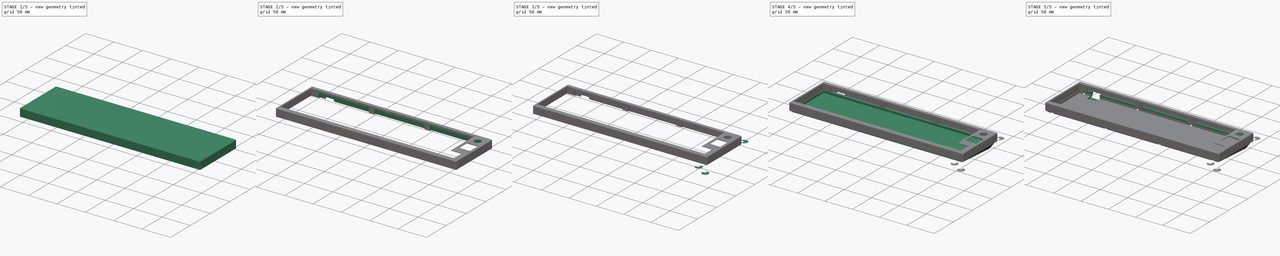
[diagram: build sequence overview — one tinted view per stage of 5, left to right]
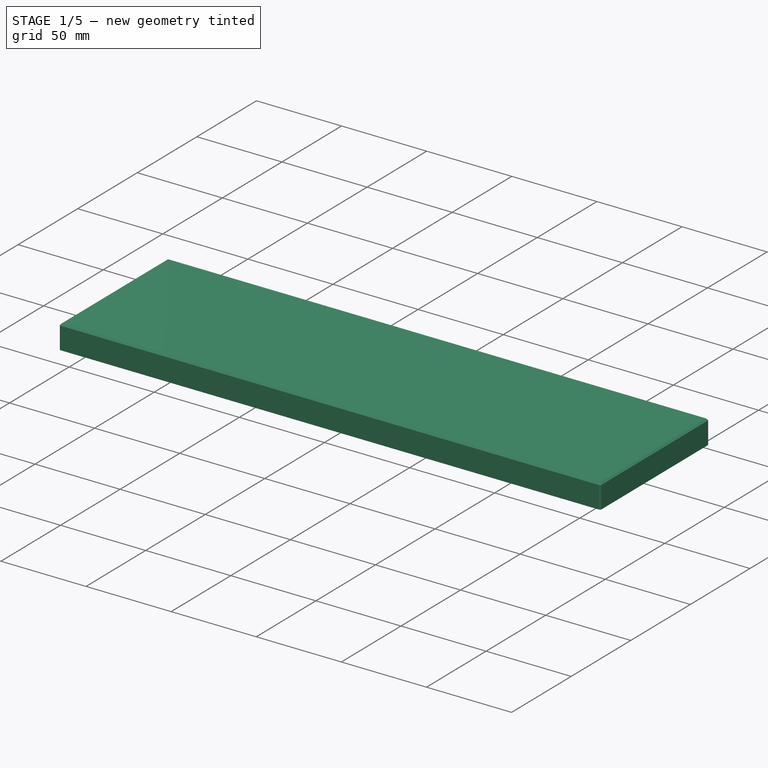
[diagram: stage 1 of 5 — iso view after this stage's code; geometry added in this stage tinted green]
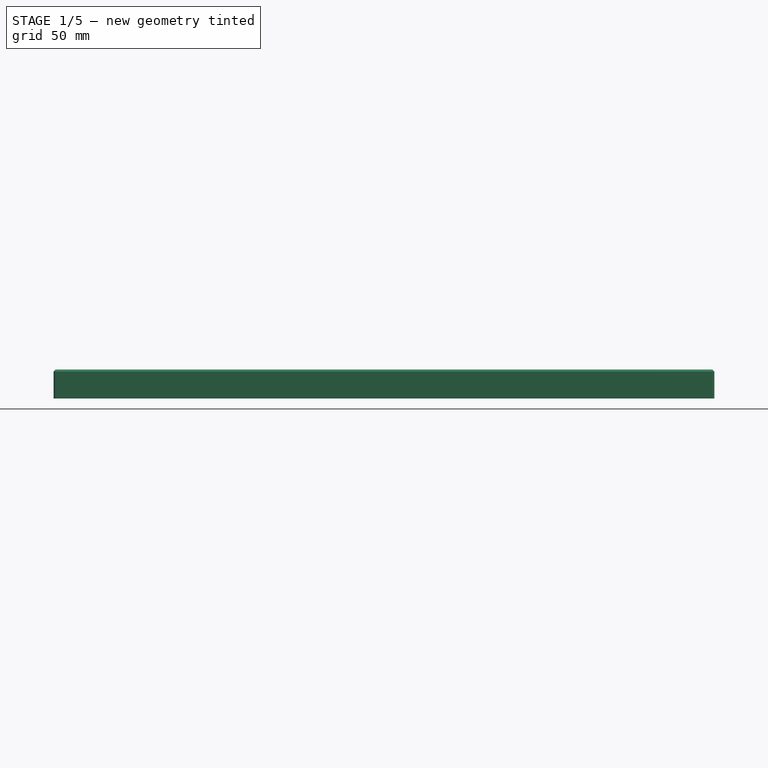
[diagram: stage 1 of 5 — front view after this stage's code; geometry added in this stage tinted green]
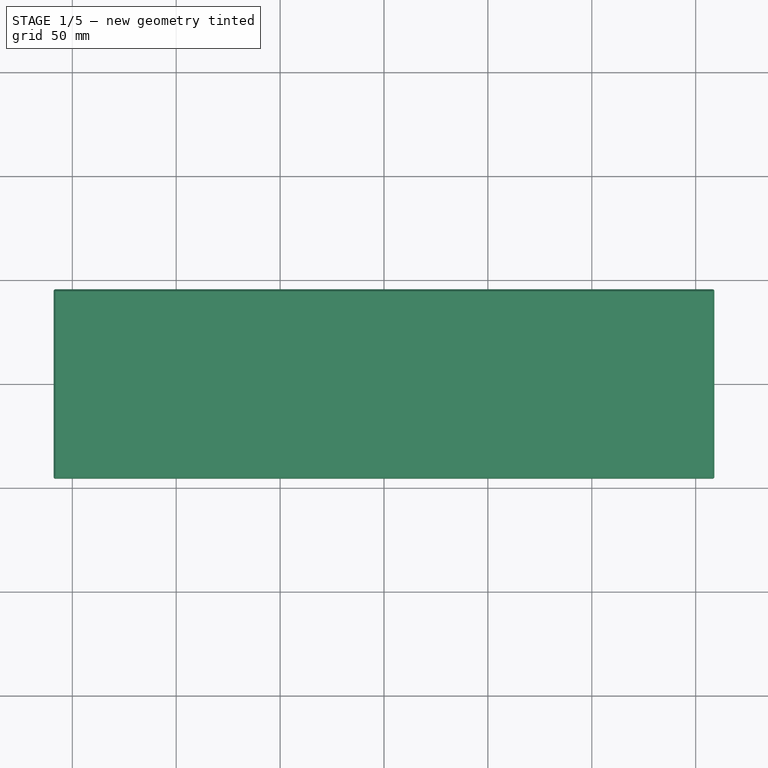
[diagram: stage 1 of 5 — top view after this stage's code; geometry added in this stage tinted green]
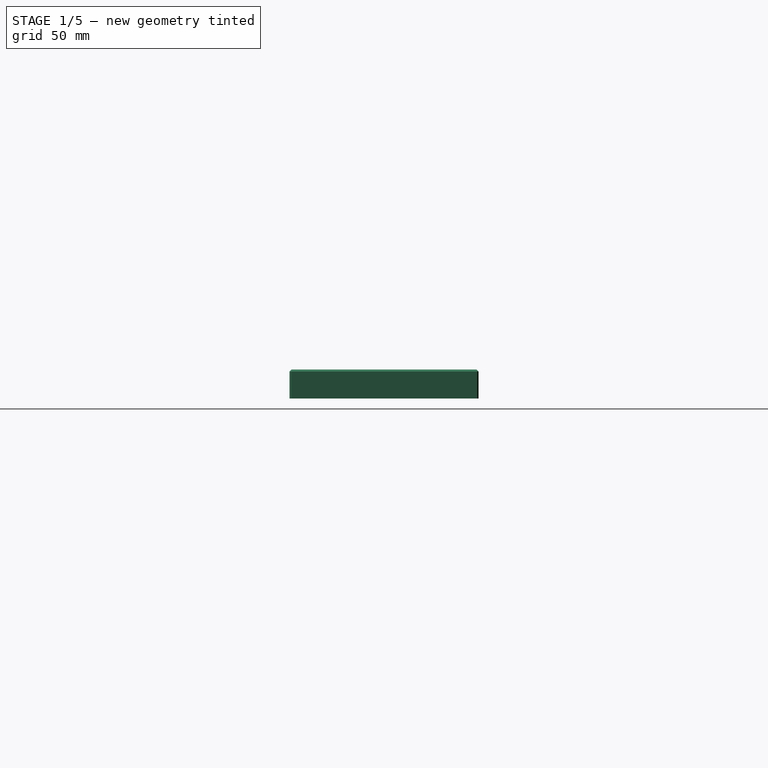
[diagram: stage 1 of 5 — right view after this stage's code; geometry added in this stage tinted green]
FCSTD DOCUMENT  (FreeCAD 1.0R39285 (Git))
Label: ts52k-case
License: All rights reserved
LicenseURL: http://en.wikipedia.org/wiki/All_rights_reserved
objects: Sketcher::SketchObject×19, PartDesign::Pocket×10, PartDesign::Pad×6, PartDesign::Body×5, PartDesign::Fillet×2, Spreadsheet::Sheet×1, PartDesign::AdditiveLoft×1, PartDesign::Chamfer×1
note: 103 computed .brp shape members not serialized (recipe doc carries the construction recipe); baked Part::Feature solids carry a one-line shape summary decoded from their .brp

FEATURE [Sketcher::SketchObject] Sketch011
  ArcFitTolerance = 0
  AttachmentSupport = -> [XY_Plane001]
  FullyConstrained = true
  MakeInternals = false
  MapMode = 5
  sketch-geometry (12):
    g0: LineSegment StartX=-158 StartY=45.5 StartZ=0 EndX=158 EndY=45.5 EndZ=0
    g1: LineSegment StartX=159 StartY=44.5 StartZ=0 EndX=159 EndY=-44.5 EndZ=0
    g2: LineSegment StartX=158 StartY=-45.5 StartZ=0 EndX=-158 EndY=-45.5 EndZ=0
    g3: LineSegment StartX=-159 StartY=-44.5 StartZ=0 EndX=-159 EndY=44.5 EndZ=0
    g4: ArcOfCircle CenterX=-158 CenterY=44.5 CenterZ=0 NormalX=0 NormalY=0 NormalZ=1 AngleXU=0 Radius=1 StartAngle=1.5708 EndAngle=3.14159
    g5: GeomPoint [constr] X=-159 Y=45.5 Z=0
    g6: ArcOfCircle CenterX=158 CenterY=44.5 CenterZ=0 NormalX=0 NormalY=0 NormalZ=1 AngleXU=0 Radius=1 StartAngle=1.1e-15 EndAngle=1.5708
    g7: GeomPoint [constr] X=159 Y=45.5 Z=0
    g8: ArcOfCircle CenterX=158 CenterY=-44.5 CenterZ=0 NormalX=0 NormalY=0 NormalZ=1 AngleXU=0 Radius=1 StartAngle=4.71239 EndAngle=6.28319
    g9: GeomPoint [constr] X=159 Y=-45.5 Z=0
    g10: ArcOfCircle CenterX=-158 CenterY=-44.5 CenterZ=0 NormalX=0 NormalY=0 NormalZ=1 AngleXU=0 Radius=1 StartAngle=3.14159 EndAngle=4.71239
    g11: GeomPoint [constr] X=-159 Y=-45.5 Z=0
  constraints (26):
    c: Horizontal(g2)
    c: Vertical(g1)
    c: DistanceX(g5,g7) = 318
    c: DistanceY(g11,g5) = 91
    c: PointOnObject(g5,g3)
    c: PointOnObject(g5,g0)
    c: Tangent(g3,g4) = 1.5708
    c: Tangent(g0,g4) = 1.5708
    c: PointOnObject(g7,g0)
    c: PointOnObject(g7,g1)
    c: Tangent(g0,g6) = 1.5708
    c: Tangent(g1,g6) = 1.5708
    c: PointOnObject(g9,g1)
    c: PointOnObject(g9,g2)
    c: Tangent(g1,g8) = 1.5708
    c: Tangent(g2,g8) = 1.5708
    c: PointOnObject(g11,g2)
    c: PointOnObject(g11,g3)
    c: Tangent(g2,g10) = 1.5708
    c: Tangent(g3,g10) = 1.5708
    c: Radius(g4) = 1
    c: Radius(g10) = 1
    c: Radius(g8) = 1
    c: Radius(g6) = 1
    c: Symmetric(g0,g2,g-1)
    c: Symmetric(g0,g0,g-2)
FEATURE [PartDesign::Pad] Pad001  label="upper-body001"
  Direction = (0,0,1)
  Length = 14
  Length2 = 10
  Profile = -> Sketch011
  ReferenceAxis = -> Sketch011 [N_Axis]
  Suppressed = false
  Type = 0
FEATURE [PartDesign::Body] Body008  label="Brim-Base2"
  AllowCompound = false
  Group = -> [Sketch075,Pad014]
  Origin = -> Origin008
  Tip = -> Pad014
FEATURE [PartDesign::Chamfer] Chamfer
  Angle = 45
  Base = -> Pad001 [Face10]
  BaseFeature = -> Pad001
  ChamferType = 0
  FlipDirection = false
  Size = 1
  Size2 = 1
  SupportTransform = false
  Suppressed = false
  UseAllEdges = false
FEATURE [PartDesign::Pocket] Pocket050
  BaseFeature = -> Chamfer
  Direction = (0,0,-1)
  Length = 5
  Length2 = 5
  Profile = -> Sketch076
  ReferenceAxis = -> Sketch076 [N_Axis]
  Suppressed = false
  Type = 0
FEATURE [PartDesign::Pocket] Pocket006  label="pcb_keys_open001"
  BaseFeature = -> Pocket050
  Direction = (0,0,-1)
  Length = 16.5
  Length2 = 5
  Profile = -> Sketch014
  ReferenceAxis = -> Sketch014 [N_Axis]
  Suppressed = false
  Type = 0
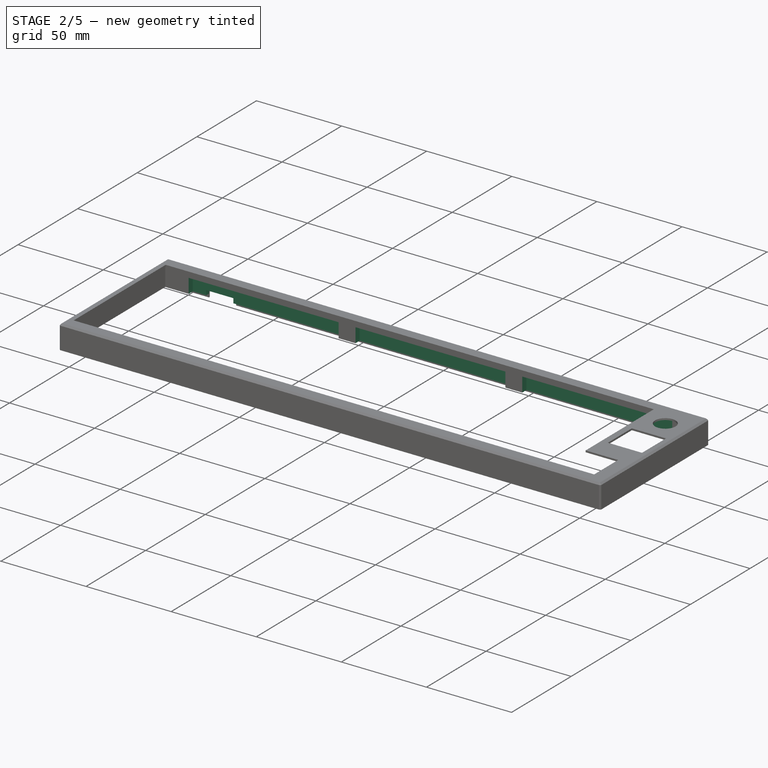
[diagram: stage 2 of 5 — iso view after this stage's code; geometry added in this stage tinted green]
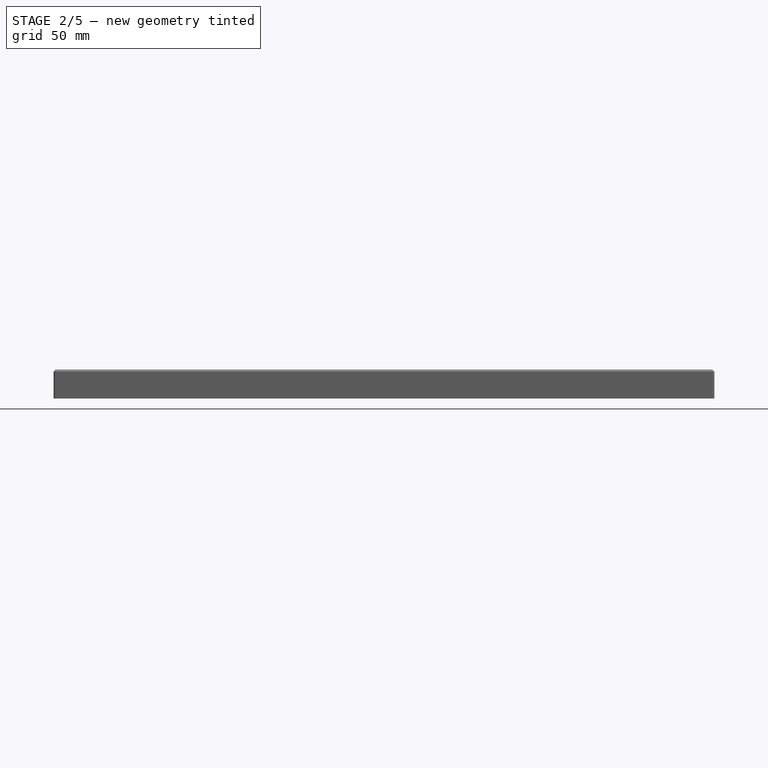
[diagram: stage 2 of 5 — front view after this stage's code; geometry added in this stage tinted green]
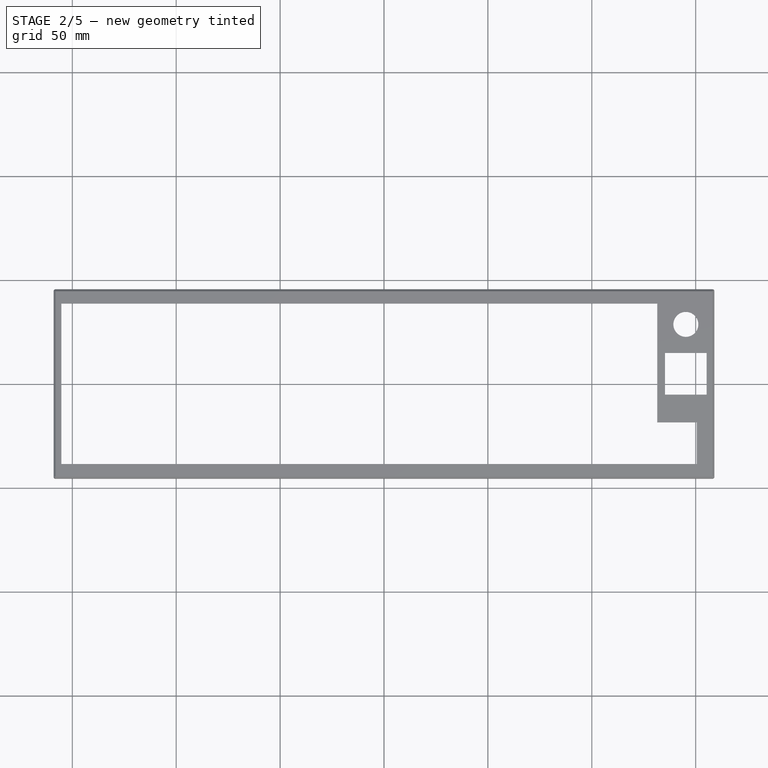
[diagram: stage 2 of 5 — top view after this stage's code; geometry added in this stage tinted green]
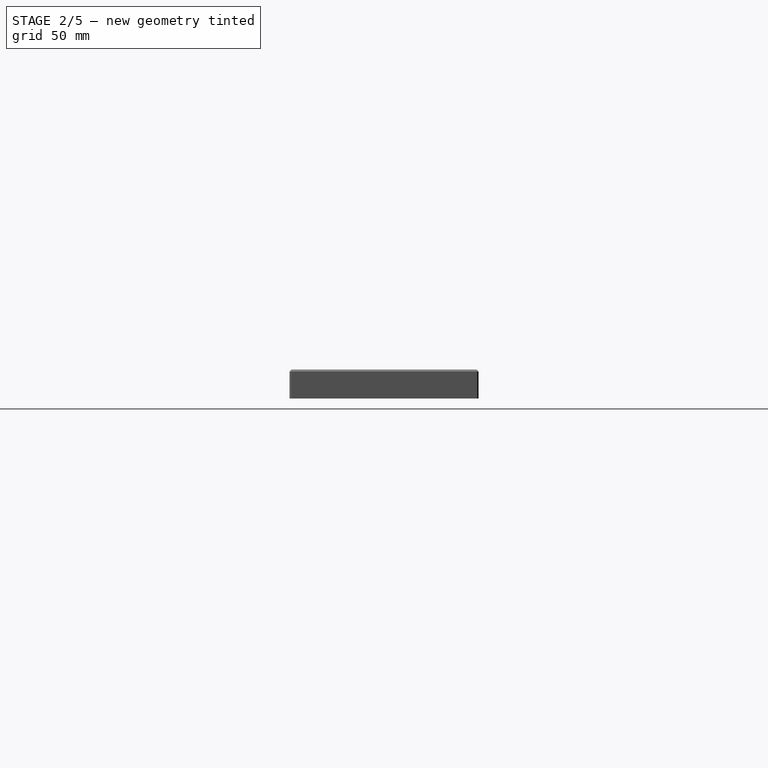
[diagram: stage 2 of 5 — right view after this stage's code; geometry added in this stage tinted green]
FEATURE [PartDesign::Pocket] Pocket051
  BaseFeature = -> Pocket006
  Direction = (0,0,-1)
  Length = 2
  Length2 = 5
  Profile = -> Sketch077
  ReferenceAxis = -> Sketch077 [N_Axis]
  Suppressed = false
  Type = 0
FEATURE [PartDesign::Pocket] Pocket007  label="plate_open"
  BaseFeature = -> Pocket051
  Direction = (0,0,-1)
  Length = 8.5
  Length2 = 5
  Profile = -> Sketch015
  ReferenceAxis = -> Sketch015 [N_Axis]
  Suppressed = false
  Type = 0
FEATURE [PartDesign::Pocket] Pocket008  label="heatset"
  BaseFeature = -> Pocket007
  Direction = (0,0,-1)
  Length = 6.2
  Length2 = 5
  Profile = -> Sketch017
  ReferenceAxis = -> Sketch017 [N_Axis]
  Reversed = true
  Suppressed = false
  Type = 0
FEATURE [PartDesign::Pocket] Pocket052
  BaseFeature = -> Pocket008
  Direction = (0,0,-1)
  Length = 7.5
  Length2 = 5
  Midplane = true
  Profile = -> Sketch078
  ReferenceAxis = -> Sketch078 [N_Axis]
  Suppressed = false
  Type = 0
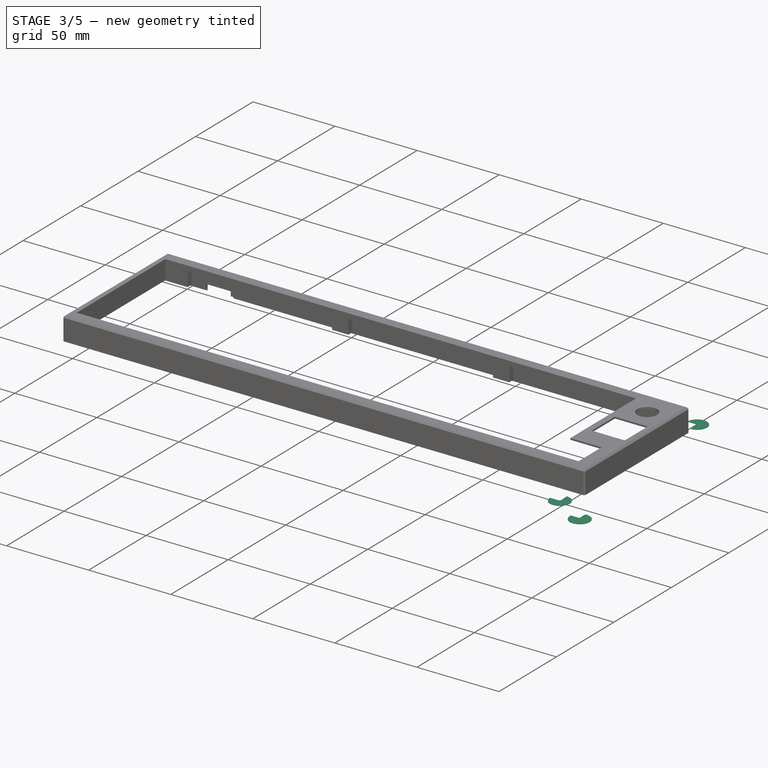
[diagram: stage 3 of 5 — iso view after this stage's code; geometry added in this stage tinted green]
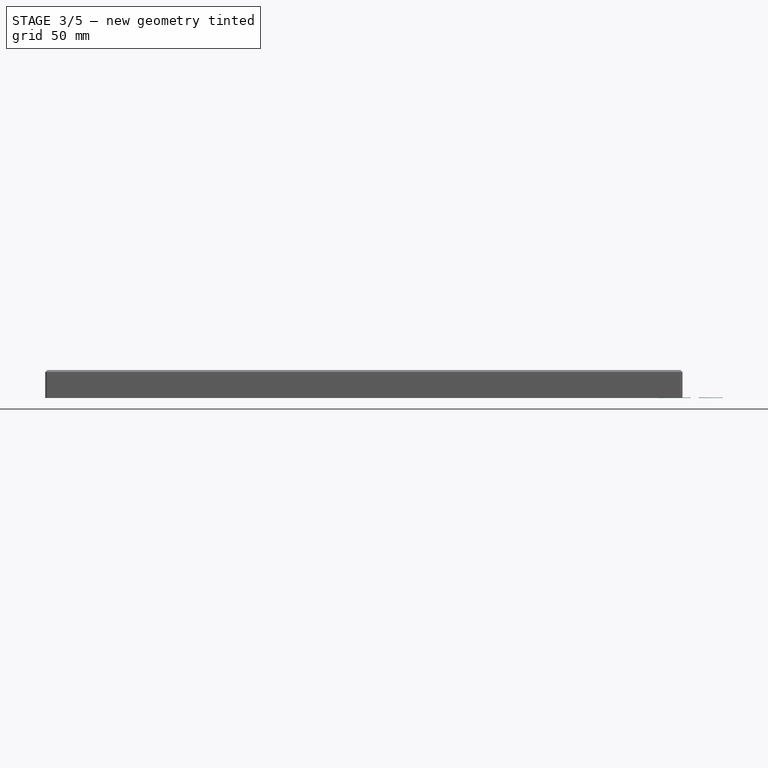
[diagram: stage 3 of 5 — front view after this stage's code; geometry added in this stage tinted green]
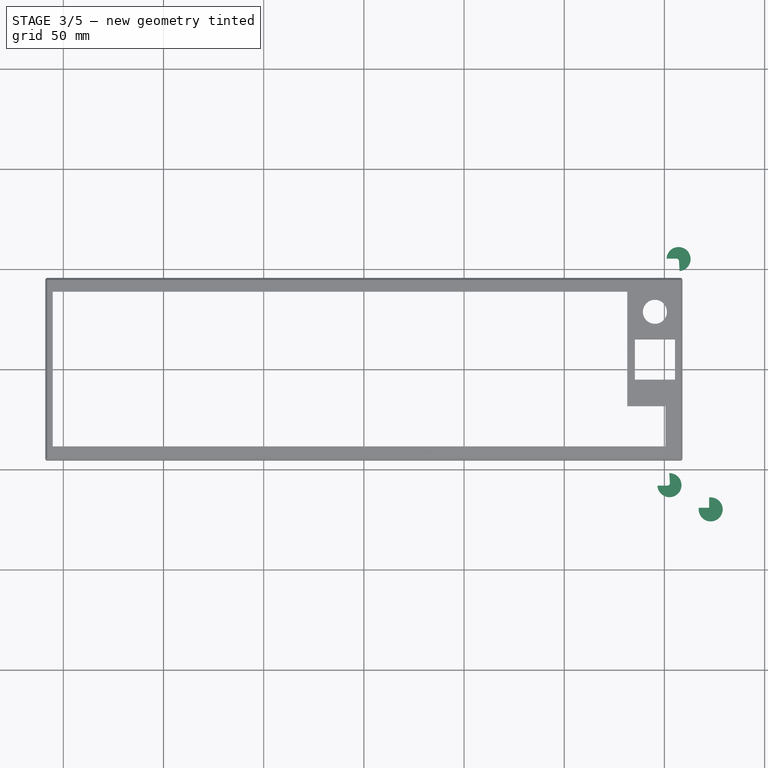
[diagram: stage 3 of 5 — top view after this stage's code; geometry added in this stage tinted green]
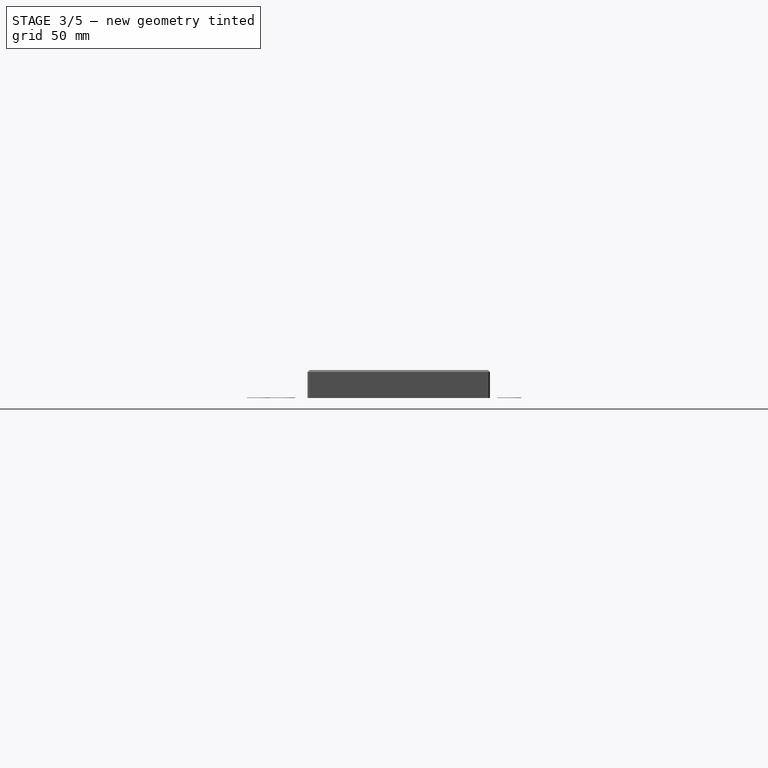
[diagram: stage 3 of 5 — right view after this stage's code; geometry added in this stage tinted green]
FEATURE [PartDesign::Body] Body  label="Base"
  AllowCompound = false
  Group = -> [Sketch002,Sketch003,Sketch004,Sketch008,Sketch009,Sketch,Sketch021,Pad002,AdditiveLoft,Pocket,Pocket010,Pocket011,Sketch022,Pad003,Sketch079,Pocket053,Fillet001]
  Origin = -> Origin
  Tip = -> Fillet001
FEATURE [Sketcher::SketchObject] Sketch073
  ArcFitTolerance = 0
  AttachmentSupport = -> [XY_Plane006]
  FullyConstrained = false
  MakeInternals = false
  MapMode = 5
  sketch-geometry (4):
    g0: ArcOfCircle CenterX=172.098 CenterY=-68.8279 CenterZ=0 NormalX=0 NormalY=0 NormalZ=1 AngleXU=0 Radius=0.2 StartAngle=4.71239 EndAngle=6.28319
    g1: ArcOfCircle CenterX=173.098 CenterY=-69.8279 CenterZ=0 NormalX=0 NormalY=0 NormalZ=1 AngleXU=0 Radius=6 StartAngle=3.00786 EndAngle=7.98771
    g2: LineSegment StartX=172.298 StartY=-68.8279 StartZ=0 EndX=172.298 EndY=-63.8815 EndZ=0
    g3: LineSegment StartX=172.098 StartY=-69.0279 StartZ=0 EndX=167.151 EndY=-69.0279 EndZ=0
  constraints (10):
    c: Radius(g0) = 0.2
    c: Vertical(g2)
    c: Horizontal(g3)
    c: Tangent(g2,g0) = -1.5708
    c: Tangent(g3,g0) = 1.5708
    c: Coincident(g2,g1)
    c: Coincident(g1,g3)
    c: Radius(g1) = 6
    c: DistanceY(g1,g0) = 1
    c: DistanceX(g0,g1) = 1
FEATURE [PartDesign::Pad] Pad013
  Direction = (0,0,1)
  Length = 0.2
  Length2 = 10
  Profile = -> Sketch073
  ReferenceAxis = -> Sketch073 [N_Axis]
  Suppressed = false
  Type = 0
FEATURE [PartDesign::Body] Body006  label="Brim-Lid"
  AllowCompound = false
  Group = -> [Sketch073,Pad013]
  Origin = -> Origin006
  Tip = -> Pad013
FEATURE [Sketcher::SketchObject] Sketch074
  ArcFitTolerance = 0
  AttachmentSupport = -> [XY_Plane007]
  FullyConstrained = false
  MakeInternals = false
  MapMode = 5
  sketch-geometry (4):
    g0: ArcOfCircle CenterX=151.524 CenterY=-56.7261 CenterZ=0 NormalX=0 NormalY=0 NormalZ=1 AngleXU=0 Radius=1.2 StartAngle=4.71239 EndAngle=6.34165
    g1: ArcOfCircle CenterX=152.524 CenterY=-57.7261 CenterZ=0 NormalX=0 NormalY=0 NormalZ=1 AngleXU=0 Radius=6 StartAngle=3.17493 EndAngle=7.86908
    g2: LineSegment StartX=152.722 StartY=-56.656 StartZ=0 EndX=152.433 EndY=-51.7268 EndZ=0
    g3: LineSegment StartX=151.524 StartY=-57.9261 StartZ=0 EndX=146.527 EndY=-57.9261 EndZ=0
  constraints (11):
    c: Radius(g0) = 1.2
    c: DistanceX(g0,g0) = 0
    c: DistanceX(g0,g1) = 1
    c: Coincident(g2,g1)
    c: Coincident(g3,g0)
    c: Horizontal(g3)
    c: Angle(g2,g3) = 1.51233
    c: Coincident(g1,g3)
    c: DistanceY(g1,g0) = 1
    c: Radius(g1) = 6
    c: Tangent(g0,g2) = -1.5708
FEATURE [PartDesign::Pad] Pad015
  Direction = (0,0,1)
  Length = 0.2
  Length2 = 10
  Profile = -> Sketch074
  ReferenceAxis = -> Sketch074 [N_Axis]
  Suppressed = false
  Type = 0
FEATURE [PartDesign::Body] Body007  label="Brim-Base1"
  AllowCompound = false
  Group = -> [Sketch074,Pad015]
  Origin = -> Origin007
  Tip = -> Pad015
FEATURE [Sketcher::SketchObject] Sketch075
  ArcFitTolerance = 0
  AttachmentSupport = -> [XY_Plane008]
  FullyConstrained = false
  MakeInternals = false
  MapMode = 5
  sketch-geometry (4):
    g0: ArcOfCircle CenterX=156.07 CenterY=54.1344 CenterZ=0 NormalX=0 NormalY=0 NormalZ=1 AngleXU=0 Radius=1.2 StartAngle=0.0584685 EndAngle=1.5708
    g1: ArcOfCircle CenterX=157.07 CenterY=55.1344 CenterZ=0 NormalX=0 NormalY=0 NormalZ=1 AngleXU=0 Radius=6 StartAngle=4.79474 EndAngle=9.39144
    g2: LineSegment StartX=156.07 StartY=55.3344 StartZ=0 EndX=151.073 EndY=55.3344 EndZ=0
    g3: LineSegment StartX=157.268 StartY=54.2045 StartZ=0 EndX=157.563 EndY=49.1547 EndZ=0
  constraints (11):
    c: Radius(g0) = 1.2
    c: DistanceX(g0,g0) = 0
    c: Coincident(g2,g0)
    c: Horizontal(g2)
    c: Tangent(g3,g0) = 1.5708
    c: Angle(g2,g3) = 1.62926
    c: Coincident(g2,g1)
    c: Coincident(g1,g3)
    c: Radius(g1) = 6
    c: DistanceY(g0,g1) = 1
    c: DistanceX(g0,g1) = 1
FEATURE [PartDesign::Pad] Pad014
  Direction = (0,0,1)
  Length = 0.2
  Length2 = 10
  Profile = -> Sketch075
  ReferenceAxis = -> Sketch075 [N_Axis]
  Suppressed = false
  Type = 0
FEATURE [PartDesign::Fillet] Fillet
  Base = -> Pocket052 [Edge56,Edge23,Edge13,Edge59,Edge53,Edge78,Edge52,Edge51]
  BaseFeature = -> Pocket052
  Radius = 0.5
  SupportTransform = false
  Suppressed = false
  UseAllEdges = false
FEATURE [PartDesign::Body] Body001  label="Lid"
  AllowCompound = false
  Group = -> [Sketch011,Pad001,Chamfer,Pocket050,Sketch014,Sketch015,Sketch017,Pocket006,Pocket051,Pocket007,Pocket008,Sketch076,Sketch077,Sketch078,Pocket052,Fillet]
  Origin = -> Origin001
  Tip = -> Fillet
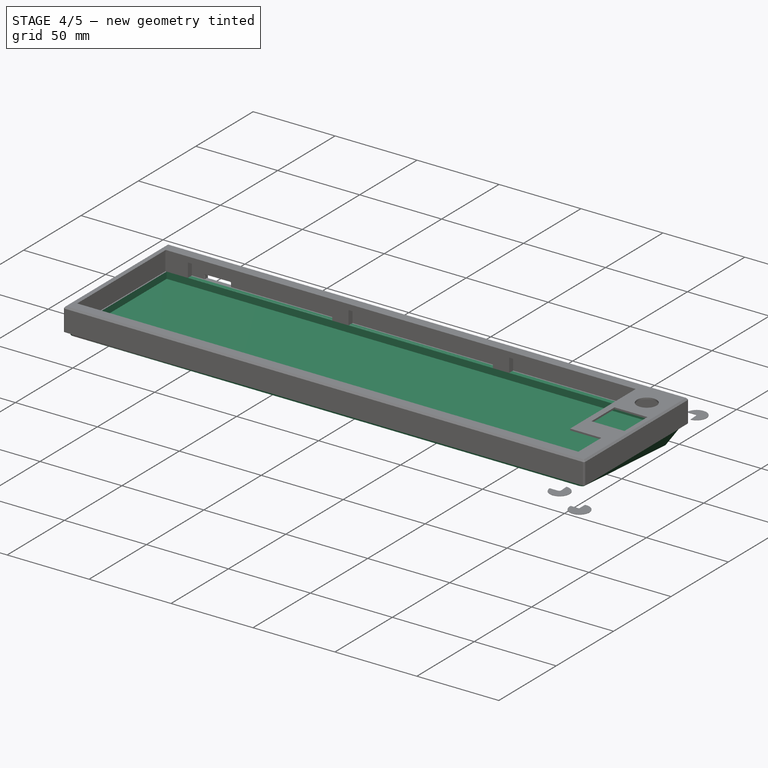
[diagram: stage 4 of 5 — iso view after this stage's code; geometry added in this stage tinted green]
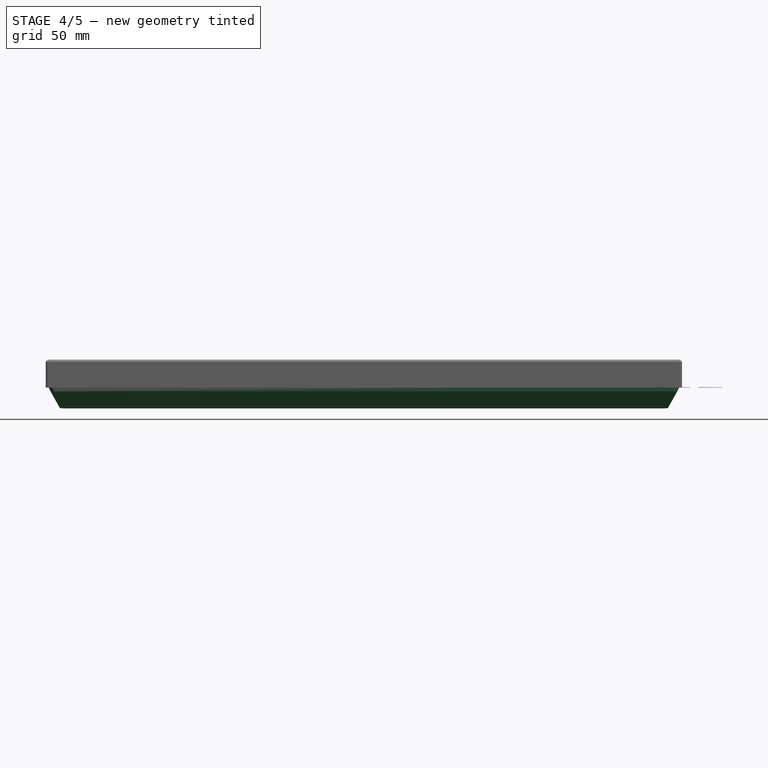
[diagram: stage 4 of 5 — front view after this stage's code; geometry added in this stage tinted green]
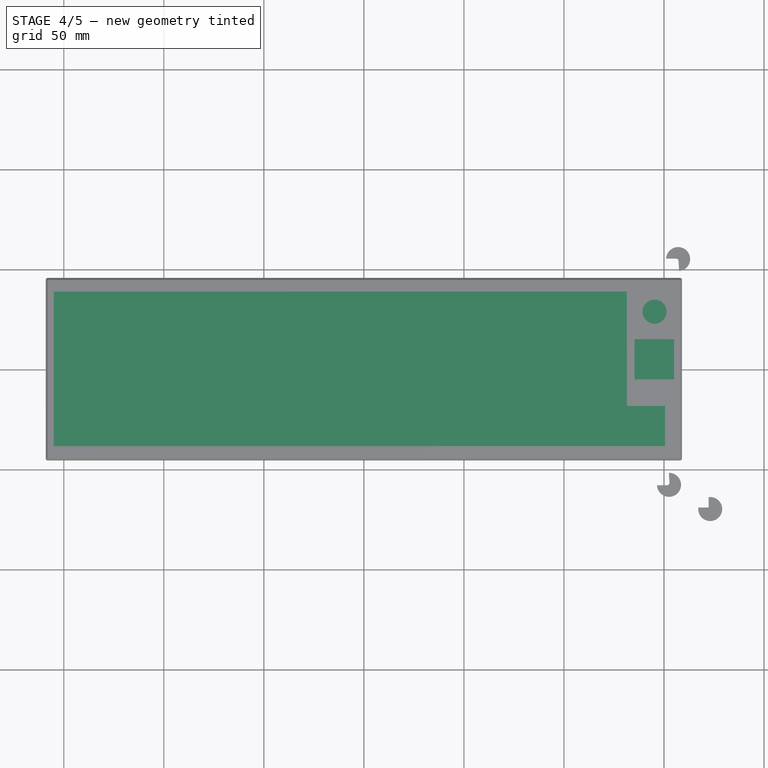
[diagram: stage 4 of 5 — top view after this stage's code; geometry added in this stage tinted green]
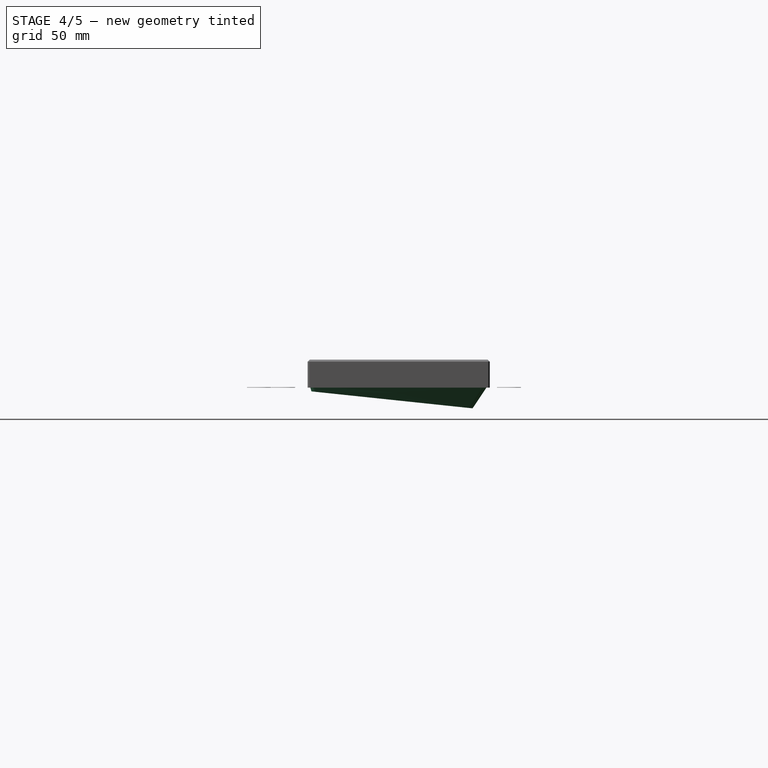
[diagram: stage 4 of 5 — right view after this stage's code; geometry added in this stage tinted green]
FEATURE [Sketcher::SketchObject] Sketch014
  ArcFitTolerance = 0
  AttachmentOffset = pos=(0,0,13) rot=(0,0,1;0rad)
  AttachmentSupport = -> [XY_Plane001]
  FullyConstrained = true
  MakeInternals = false
  MapMode = 5
  Placement = pos=(0,0,13) rot=(0,0,1;0rad)
  expr: Constraints[7] = <<Spreadsheet>>.plate_open_h
  sketch-geometry (4):
    g0: LineSegment StartX=-155.75 StartY=38.95 StartZ=0 EndX=155.75 EndY=38.95 EndZ=0
    g1: LineSegment StartX=155.75 StartY=38.95 StartZ=0 EndX=155.75 EndY=-38.95 EndZ=0
    g2: LineSegment StartX=155.75 StartY=-38.95 StartZ=0 EndX=-155.75 EndY=-38.95 EndZ=0
    g3: LineSegment StartX=-155.75 StartY=-38.95 StartZ=0 EndX=-155.75 EndY=38.95 EndZ=0
  constraints (10):
    c: Coincident(g0,g1)
    c: Coincident(g1,g2)
    c: Coincident(g2,g3)
    c: Coincident(g3,g0)
    c: Horizontal(g2)
    c: Vertical(g3)
    c: DistanceX(g0,g0) = 311.5
    c: DistanceY(g1,g0) = 77.9
    c: Symmetric(g0,g0,g-2)
    c: Symmetric(g0,g1,g-1)
FEATURE [Sketcher::SketchObject] Sketch015
  ArcFitTolerance = 0
  AttachmentOffset = pos=(0,0,10.5) rot=(0,0,1;0rad)
  AttachmentSupport = -> [XY_Plane001]
  FullyConstrained = true
  MakeInternals = false
  MapMode = 5
  Placement = pos=(0,0,10.5) rot=(0,0,1;0rad)
  expr: Constraints[24] = <<Spreadsheet>>.holes_interval - 9.9
  expr: Constraints[25] = <<Spreadsheet>>.holes_interval - 9.9
  expr: Constraints[65] = <<Spreadsheet>>.plate_open_h
  sketch-geometry (28):
    g0: LineSegment StartX=-149.05 StartY=38.95 StartZ=0 EndX=-142.05 EndY=38.95 EndZ=0
    g1: LineSegment StartX=-142.05 StartY=38.95 StartZ=0 EndX=-142.05 EndY=42.45 EndZ=0
    g2: LineSegment StartX=-142.05 StartY=42.45 StartZ=0 EndX=-53.95 EndY=42.45 EndZ=0
    g3: LineSegment StartX=-53.95 StartY=42.45 StartZ=0 EndX=-53.95 EndY=38.95 EndZ=0
    g4: LineSegment StartX=-53.95 StartY=38.95 StartZ=0 EndX=-44.05 EndY=38.95 EndZ=0
    g5: LineSegment StartX=-44.05 StartY=38.95 StartZ=0 EndX=-44.05 EndY=42.45 EndZ=0
    g6: LineSegment StartX=-44.05 StartY=42.45 StartZ=0 EndX=44.05 EndY=42.45 EndZ=0
    g7: LineSegment StartX=44.05 StartY=42.45 StartZ=0 EndX=44.05 EndY=38.95 EndZ=0
    g8: LineSegment StartX=44.05 StartY=38.95 StartZ=0 EndX=53.95 EndY=38.95 EndZ=0
    g9: LineSegment StartX=53.95 StartY=38.95 StartZ=0 EndX=53.95 EndY=42.45 EndZ=0
    g10: LineSegment StartX=53.95 StartY=42.45 StartZ=0 EndX=142.05 EndY=42.45 EndZ=0
    g11: LineSegment StartX=142.05 StartY=42.45 StartZ=0 EndX=142.05 EndY=38.95 EndZ=0
    g12: LineSegment StartX=142.05 StartY=38.95 StartZ=0 EndX=149.05 EndY=38.95 EndZ=0
    g13: LineSegment StartX=-149.05 StartY=-38.95 StartZ=0 EndX=-142.05 EndY=-38.95 EndZ=0
    g14: LineSegment StartX=-142.05 StartY=-38.95 StartZ=0 EndX=-142.05 EndY=-42.45 EndZ=0
    g15: LineSegment StartX=-142.05 StartY=-42.45 StartZ=0 EndX=-53.95 EndY=-42.45 EndZ=0
    g16: LineSegment StartX=-53.95 StartY=-42.45 StartZ=0 EndX=-53.95 EndY=-38.95 EndZ=0
    g17: LineSegment StartX=-53.95 StartY=-38.95 StartZ=0 EndX=-44.05 EndY=-38.95 EndZ=0
    g18: LineSegment StartX=-44.05 StartY=-38.95 StartZ=0 EndX=-44.05 EndY=-42.45 EndZ=0
    g19: LineSegment StartX=-44.05 StartY=-42.45 StartZ=0 EndX=44.05 EndY=-42.45 EndZ=0
    g20: LineSegment StartX=44.05 StartY=-42.45 StartZ=0 EndX=44.05 EndY=-38.95 EndZ=0
    g21: LineSegment StartX=44.05 StartY=-38.95 StartZ=0 EndX=53.95 EndY=-38.95 EndZ=0
    g22: LineSegment StartX=53.95 StartY=-38.95 StartZ=0 EndX=53.95 EndY=-42.45 EndZ=0
    g23: LineSegment StartX=53.95 StartY=-42.45 StartZ=0 EndX=142.05 EndY=-42.45 EndZ=0
    g24: LineSegment StartX=142.05 StartY=-42.45 StartZ=0 EndX=142.05 EndY=-38.95 EndZ=0
    g25: LineSegment StartX=142.05 StartY=-38.95 StartZ=0 EndX=149.05 EndY=-38.95 EndZ=0
    g26: LineSegment StartX=-149.05 StartY=38.95 StartZ=0 EndX=-149.05 EndY=-38.95 EndZ=0
    g27: LineSegment StartX=149.05 StartY=38.95 StartZ=0 EndX=149.05 EndY=-38.95 EndZ=0
  constraints (81):
    c: Horizontal(g0)
    c: Coincident(g0,g1)
    c: Vertical(g1)
    c: Coincident(g1,g2)
    c: Horizontal(g2)
    c: Coincident(g2,g3)
    c: Vertical(g3)
    c: Coincident(g3,g4)
    c: Horizontal(g4)
    c: Coincident(g4,g5)
    c: Coincident(g5,g6)
    c: Horizontal(g6)
    c: Coincident(g7,g8)
    c: Horizontal(g8)
    c: Coincident(g8,g9)
    c: Coincident(g9,g10)
    c: Horizontal(g10)
    c: Coincident(g10,g11)
    c: Coincident(g11,g12)
    c: Horizontal(g12)
    c: Vertical(g5)
    c: Vertical(g7)
    c: Vertical(g9)
    c: Vertical(g11)
    c: DistanceX(g5,g6) = 88.1
    c: DistanceX(g1,g2) = 88.1
    c: DistanceX(g2,g5) = 9.9
    c: DistanceX(g0,g0) = 7
    c: PointOnObject(g5,g2)
    c: DistanceX(g7,g8) = 9.9
    c: DistanceX(g11,g12) = 7
    c: DistanceY(g0,g1) = 3.5
    c: PointOnObject(g3,g0)
    c: PointOnObject(g11,g0)
    c: Horizontal(g13)
    c: Coincident(g13,g14)
    c: Vertical(g14)
    c: Coincident(g14,g15)
    c: Horizontal(g15)
    c: Coincident(g15,g16)
    c: Vertical(g16)
    c: Coincident(g16,g17)
    c: Horizontal(g17)
    c: Coincident(g17,g18)
    c: Coincident(g18,g19)
    c: Horizontal(g19)
    c: Coincident(g20,g21)
    c: Horizontal(g21)
    c: Coincident(g21,g22)
    c: Coincident(g22,g23)
    c: Horizontal(g23)
    c: Coincident(g23,g24)
    c: Coincident(g24,g25)
    c: Horizontal(g25)
    c: Vertical(g18)
    c: Vertical(g20)
    c: Vertical(g22)
    c: Vertical(g24)
    c: PointOnObject(g18,g15)
    c: PointOnObject(g20,g23)
    c: PointOnObject(g16,g13)
    c: PointOnObject(g20,g13)
    c: PointOnObject(g24,g13)
    c: Coincident(g26,g0)
    c: Coincident(g26,g13)
    c: DistanceY(g13,g0) = 77.9
    c: DistanceY(g14,g13) = 3.5
    c: Coincident(g27,g12)
    c: Coincident(g27,g25)
    c: Symmetric(g0,g13,g-1)
    c: Coincident(g7,g6)
    c: Coincident(g20,g19)
    c: Symmetric(g7,g4,g-2)
    c: PointOnObject(g17,g5)
    c: PointOnObject(g16,g3)
    c: PointOnObject(g13,g1)
    c: PointOnObject(g20,g7)
    c: PointOnObject(g21,g9)
    c: PointOnObject(g24,g11)
    c: Vertical(g27)
    c: Symmetric(g10,g1,g-2)
FEATURE [Sketcher::SketchObject] Sketch017
  ArcFitTolerance = 0
  AttachmentOffset = pos=(0,0,2) rot=(0,0,1;0rad)
  AttachmentSupport = -> [XY_Plane001]
  FullyConstrained = true
  MakeInternals = false
  MapMode = 5
  Placement = pos=(0,0,2) rot=(0,0,1;0rad)
  expr: Constraints[0] = <<Spreadsheet>>.holes_interval
  expr: Constraints[11] = <<Spreadsheet>>.holes_interval_h
  expr: Constraints[12] = <<Spreadsheet>>.holes_interval
  sketch-geometry (8):
    g0: Circle CenterX=-147 CenterY=41.7 CenterZ=0 NormalX=0 NormalY=0 NormalZ=1 AngleXU=0 Radius=2.2
    g1: Circle CenterX=-49 CenterY=41.7 CenterZ=0 NormalX=0 NormalY=0 NormalZ=1 AngleXU=0 Radius=2.2
    g2: Circle CenterX=49 CenterY=41.7 CenterZ=0 NormalX=0 NormalY=0 NormalZ=1 AngleXU=0 Radius=2.2
    g3: Circle CenterX=147 CenterY=41.7 CenterZ=0 NormalX=0 NormalY=0 NormalZ=1 AngleXU=0 Radius=2.2
    g4: Circle CenterX=-147 CenterY=-41.7 CenterZ=0 NormalX=0 NormalY=0 NormalZ=1 AngleXU=0 Radius=2.2
    g5: Circle CenterX=-49 CenterY=-41.7 CenterZ=0 NormalX=0 NormalY=0 NormalZ=1 AngleXU=0 Radius=2.2
    g6: Circle CenterX=49 CenterY=-41.7 CenterZ=0 NormalX=0 NormalY=0 NormalZ=1 AngleXU=0 Radius=2.2
    g7: Circle CenterX=147 CenterY=-41.7 CenterZ=0 NormalX=0 NormalY=0 NormalZ=1 AngleXU=0 Radius=2.2
  constraints (18):
    c: DistanceX(g0,g1) = 98
    c: Diameter(g2) = 4.4
    c: Diameter(g3) = 4.4
    c: Diameter(g1) = 4.4
    c: Diameter(g0) = 4.4
    c: Diameter(g6) = 4.4
    c: Diameter(g7) = 4.4
    c: Diameter(g5) = 4.4
    c: Diameter(g4) = 4.4
    c: DistanceY(g0,g1) = 0
    c: Symmetric(g4,g0,g-1)
    c: DistanceY(g4,g0) = 83.4
    c: DistanceX(g1,g2) = 98
    c: Symmetric(g2,g1,g-2)
    c: Symmetric(g5,g1,g-1)
    c: Symmetric(g2,g6,g-1)
    c: Symmetric(g3,g0,g-2)
    c: Symmetric(g7,g3,g-1)
FEATURE [Sketcher::SketchObject] Sketch002
  ArcFitTolerance = 0
  AttachmentOffset = pos=(0,0,-12) rot=(0,0,1;0rad)
  FullyConstrained = true
  MakeInternals = false
  Placement = pos=(0,-0.36,-6.4) rot=(-1,0,0;0.10472rad)
  sketch-geometry (8):
    g0: LineSegment StartX=154.5 StartY=-43.5 StartZ=0 EndX=-154.5 EndY=-43.5 EndZ=0
    g1: ArcOfCircle CenterX=-154.5 CenterY=-41.5 CenterZ=0 NormalX=0 NormalY=0 NormalZ=1 AngleXU=0 Radius=2 StartAngle=3.08312 EndAngle=4.71239
    g2: ArcOfCircle CenterX=154.5 CenterY=-41.5 CenterZ=0 NormalX=0 NormalY=0 NormalZ=1 AngleXU=0 Radius=2 StartAngle=4.71239 EndAngle=6.34165
    g3: LineSegment StartX=156.497 StartY=-41.3831 StartZ=0 EndX=151.989 EndY=35.6169 EndZ=0
    g4: LineSegment StartX=-151.989 StartY=35.6169 StartZ=0 EndX=-156.497 EndY=-41.3831 EndZ=0
    g5: LineSegment StartX=149.993 StartY=37.5 StartZ=0 EndX=-149.993 EndY=37.5 EndZ=0
    g6: ArcOfCircle CenterX=149.993 CenterY=35.5 CenterZ=0 NormalX=0 NormalY=0 NormalZ=1 AngleXU=0 Radius=2 StartAngle=0.0584685 EndAngle=1.5708
    g7: ArcOfCircle CenterX=-149.993 CenterY=35.5 CenterZ=0 NormalX=0 NormalY=0 NormalZ=1 AngleXU=0 Radius=2 StartAngle=1.5708 EndAngle=3.08312
  constraints (18):
    c: DistanceY(g0,g-1) = 43.5
    c: Symmetric(g0,g0,g-2)
    c: DistanceX(g0,g0) = 309
    c: Tangent(g1,g0) = 1.5708
    c: Tangent(g2,g0) = 1.5708
    c: Radius(g2) = 2
    c: Radius(g1) = 2
    c: Tangent(g2,g3) = -1.5708
    c: Tangent(g4,g1) = -1.5708
    c: Angle(g4,g-1) = 1.62926
    c: Symmetric(g4,g3,g-2)
    c: Horizontal(g5)
    c: Distance(g-1,g5) = 37.5
    c: Radius(g6) = 2
    c: Tangent(g6,g5) = -1.5708
    c: Tangent(g6,g3) = -1.5708
    c: Tangent(g7,g4) = -1.5708
    c: Tangent(g7,g5) = -1.5708
FEATURE [Sketcher::SketchObject] Sketch003
  ArcFitTolerance = 0
  AttachmentOffset = pos=(0,0,1) rot=(0,0,1;0rad)
  AttachmentSupport = -> [XY_Plane]
  FullyConstrained = true
  MakeInternals = false
  MapMode = 5
  Placement = pos=(0,0,1) rot=(0,0,1;0rad)
  sketch-geometry (12):
    g0: LineSegment StartX=-156 StartY=44.5 StartZ=0 EndX=156 EndY=44.5 EndZ=0
    g1: LineSegment StartX=158 StartY=42.5 StartZ=0 EndX=158 EndY=-42.5 EndZ=0
    g2: LineSegment StartX=156 StartY=-44.5 StartZ=0 EndX=-156 EndY=-44.5 EndZ=0
    g3: LineSegment StartX=-158 StartY=-42.5 StartZ=0 EndX=-158 EndY=42.5 EndZ=0
    g4: ArcOfCircle CenterX=-156 CenterY=42.5 CenterZ=0 NormalX=0 NormalY=0 NormalZ=1 AngleXU=0 Radius=2 StartAngle=1.5708 EndAngle=3.14159
    g5: GeomPoint [constr] X=-158 Y=44.5 Z=0
    g6: ArcOfCircle CenterX=156 CenterY=42.5 CenterZ=0 NormalX=0 NormalY=0 NormalZ=1 AngleXU=0 Radius=2 StartAngle=0 EndAngle=1.5708
    g7: GeomPoint [constr] X=158 Y=44.5 Z=0
    g8: ArcOfCircle CenterX=156 CenterY=-42.5 CenterZ=0 NormalX=0 NormalY=0 NormalZ=1 AngleXU=0 Radius=2 StartAngle=4.71239 EndAngle=6.28319
    g9: GeomPoint [constr] X=158 Y=-44.5 Z=0
    g10: ArcOfCircle CenterX=-156 CenterY=-42.5 CenterZ=0 NormalX=0 NormalY=0 NormalZ=1 AngleXU=0 Radius=2 StartAngle=3.14159 EndAngle=4.71239
    g11: GeomPoint [constr] X=-158 Y=-44.5 Z=0
  constraints (27):
    c: Horizontal(g2)
    c: Vertical(g1)
    c: DistanceX(g5,g7) = 316
    c: PointOnObject(g5,g3)
    c: PointOnObject(g5,g0)
    c: Tangent(g3,g4) = 1.5708
    c: Tangent(g0,g4) = 1.5708
    c: PointOnObject(g7,g0)
    c: PointOnObject(g7,g1)
    c: Tangent(g0,g6) = 1.5708
    c: Tangent(g1,g6) = 1.5708
    c: PointOnObject(g9,g1)
    c: PointOnObject(g9,g2)
    c: Tangent(g1,g8) = 1.5708
    c: Tangent(g2,g8) = 1.5708
    c: PointOnObject(g11,g2)
    c: PointOnObject(g11,g3)
    c: Tangent(g2,g10) = 1.5708
    c: Tangent(g3,g10) = 1.5708
    c: Radius(g4) = 2
    c: Radius(g10) = 2
    c: Radius(g8) = 2
    c: Radius(g6) = 2
    c: Symmetric(g0,g0,g-2)
    c: DistanceY(g2,g-1) = 44.5
    c: Vertical(g3)
    c: DistanceY(g-1,g0) = 44.5
FEATURE [Sketcher::SketchObject] Sketch004
  ArcFitTolerance = 0
  AttachmentOffset = pos=(0,0,15) rot=(0,0,1;0rad)
  AttachmentSupport = -> [XY_Plane]
  FullyConstrained = true
  MakeInternals = false
  MapMode = 5
  Placement = pos=(0,0,15) rot=(0,0,1;0rad)
  sketch-geometry (4):
    g0: LineSegment StartX=-155 StartY=38.975 StartZ=0 EndX=155 EndY=38.975 EndZ=0
    g1: LineSegment StartX=155 StartY=38.975 StartZ=0 EndX=155 EndY=-38.975 EndZ=0
    g2: LineSegment StartX=155 StartY=-38.975 StartZ=0 EndX=-155 EndY=-38.975 EndZ=0
    g3: LineSegment StartX=-155 StartY=-38.975 StartZ=0 EndX=-155 EndY=38.975 EndZ=0
  constraints (10):
    c: Coincident(g0,g1)
    c: Coincident(g1,g2)
    c: Coincident(g2,g3)
    c: Coincident(g3,g0)
    c: Horizontal(g2)
    c: Vertical(g3)
    c: DistanceX(g0,g0) = 310
    c: DistanceY(g1,g0) = 77.95
    c: Symmetric(g0,g0,g-2)
    c: Symmetric(g0,g1,g-1)
FEATURE [Sketcher::SketchObject] Sketch008
  ArcFitTolerance = 0
  AttachmentOffset = pos=(0,0,2) rot=(0,0,1;0rad)
  AttachmentSupport = -> [XY_Plane]
  FullyConstrained = true
  MakeInternals = false
  MapMode = 5
  Placement = pos=(0,0,2) rot=(0,0,1;0rad)
  expr: Constraints[0] = <<Spreadsheet>>.holes_interval
  expr: Constraints[10] = <<Spreadsheet>>.holes_interval_h
  expr: Constraints[17] = <<Spreadsheet>>.holes_interval
  expr: Constraints[1] = <<Spreadsheet>>.screw_thru_upper
  expr: Constraints[2] = <<Spreadsheet>>.screw_thru_upper
  expr: Constraints[3] = <<Spreadsheet>>.screw_thru_upper
  expr: Constraints[4] = <<Spreadsheet>>.screw_thru_upper
  expr: Constraints[5] = <<Spreadsheet>>.screw_thru_lower
  expr: Constraints[6] = <<Spreadsheet>>.screw_thru_lower
  expr: Constraints[7] = <<Spreadsheet>>.screw_thru_lower
  expr: Constraints[8] = <<Spreadsheet>>.screw_thru_lower
  sketch-geometry (8):
    g0: Circle CenterX=-147 CenterY=41.7 CenterZ=0 NormalX=0 NormalY=0 NormalZ=1 AngleXU=0 Radius=1.6
    g1: Circle CenterX=-49 CenterY=41.7 CenterZ=0 NormalX=0 NormalY=0 NormalZ=1 AngleXU=0 Radius=1.6
    g2: Circle CenterX=49 CenterY=41.7 CenterZ=0 NormalX=0 NormalY=0 NormalZ=1 AngleXU=0 Radius=1.6
    g3: Circle CenterX=147 CenterY=41.7 CenterZ=0 NormalX=0 NormalY=0 NormalZ=1 AngleXU=0 Radius=1.6
    g4: Circle CenterX=-147 CenterY=-41.7 CenterZ=0 NormalX=0 NormalY=0 NormalZ=1 AngleXU=0 Radius=1.6
    g5: Circle CenterX=-49 CenterY=-41.7 CenterZ=0 NormalX=0 NormalY=0 NormalZ=1 AngleXU=0 Radius=1.6
    g6: Circle CenterX=49 CenterY=-41.7 CenterZ=0 NormalX=0 NormalY=0 NormalZ=1 AngleXU=0 Radius=1.6
    g7: Circle CenterX=147 CenterY=-41.7 CenterZ=0 NormalX=0 NormalY=0 NormalZ=1 AngleXU=0 Radius=1.6
  constraints (18):
    c: DistanceX(g0,g1) = 98
    c: Diameter(g2) = 3.2
    c: Diameter(g3) = 3.2
    c: Diameter(g1) = 3.2
    c: Diameter(g0) = 3.2
    c: Diameter(g6) = 3.2
    c: Diameter(g7) = 3.2
    c: Diameter(g5) = 3.2
    c: Diameter(g4) = 3.2
    c: DistanceY(g0,g1) = 0
    c: DistanceY(g7,g3) = 83.4
    c: Symmetric(g1,g5,g-1)
    c: Symmetric(g4,g0,g-1)
    c: Symmetric(g6,g2,g-1)
    c: Symmetric(g3,g7,g-1)
    c: Symmetric(g2,g1,g-2)
    c: Symmetric(g0,g3,g-2)
    c: DistanceX(g1,g2) = 98
FEATURE [Sketcher::SketchObject] Sketch009
  ArcFitTolerance = 0
  AttachmentSupport = -> [XY_Plane]
  FullyConstrained = true
  MakeInternals = false
  MapMode = 5
  expr: Constraints[0] = <<Spreadsheet>>.holes_interval
  expr: Constraints[16] = <<Spreadsheet>>.holes_interval
  expr: Constraints[17] = <<Spreadsheet>>.holes_interval_h
  expr: Constraints[1] = <<Spreadsheet>>.screw_head_upper
  expr: Constraints[2] = <<Spreadsheet>>.screw_head_upper
  expr: Constraints[3] = <<Spreadsheet>>.screw_head_upper
  expr: Constraints[4] = <<Spreadsheet>>.screw_head_upper
  expr: Constraints[5] = <<Spreadsheet>>.screw_head_lower
  expr: Constraints[6] = <<Spreadsheet>>.screw_head_lower
  expr: Constraints[7] = <<Spreadsheet>>.screw_head_lower
  expr: Constraints[8] = <<Spreadsheet>>.screw_head_lower
  sketch-geometry (8):
    g0: Circle CenterX=-147 CenterY=41.7 CenterZ=0 NormalX=0 NormalY=0 NormalZ=1 AngleXU=0 Radius=3
    g1: Circle CenterX=-49 CenterY=41.7 CenterZ=0 NormalX=0 NormalY=0 NormalZ=1 AngleXU=0 Radius=3
    g2: Circle CenterX=49 CenterY=41.7 CenterZ=0 NormalX=0 NormalY=0 NormalZ=1 AngleXU=0 Radius=3
    g3: Circle CenterX=147 CenterY=41.7 CenterZ=0 NormalX=0 NormalY=0 NormalZ=1 AngleXU=0 Radius=3
    g4: Circle CenterX=-147 CenterY=-41.7 CenterZ=0 NormalX=0 NormalY=0 NormalZ=1 AngleXU=0 Radius=3
    g5: Circle CenterX=-49 CenterY=-41.7 CenterZ=0 NormalX=0 NormalY=0 NormalZ=1 AngleXU=0 Radius=3
    g6: Circle CenterX=49 CenterY=-41.7 CenterZ=0 NormalX=0 NormalY=0 NormalZ=1 AngleXU=0 Radius=3
    g7: Circle CenterX=147 CenterY=-41.7 CenterZ=0 NormalX=0 NormalY=0 NormalZ=1 AngleXU=0 Radius=3
  constraints (18):
    c: DistanceX(g0,g1) = 98
    c: Diameter(g2) = 6
    c: Diameter(g3) = 6
    c: Diameter(g1) = 6
    c: Diameter(g0) = 6
    c: Diameter(g6) = 6
    c: Diameter(g7) = 6
    c: Diameter(g5) = 6
    c: Diameter(g4) = 6
    c: DistanceY(g0,g1) = 0
    c: Symmetric(g1,g5,g-1)
    c: Symmetric(g0,g4,g-1)
    c: Symmetric(g2,g6,g-1)
    c: Symmetric(g3,g7,g-1)
    c: Symmetric(g2,g1,g-2)
    c: Symmetric(g0,g3,g-2)
    c: DistanceX(g1,g2) = 98
    c: DistanceY(g6,g2) = 83.4
FEATURE [Sketcher::SketchObject] Sketch
  ArcFitTolerance = 0
  AttachmentSupport = -> [YZ_Plane]
  FullyConstrained = true
  MakeInternals = false
  MapMode = 5
  Placement = pos=(0,0,0) rot=(0.57735,0.57735,0.57735;2.0944rad)
  sketch-geometry (4):
    g0: LineSegment StartX=-65.75 StartY=2 StartZ=0 EndX=65.75 EndY=2 EndZ=0
    g1: LineSegment StartX=65.75 StartY=2 StartZ=0 EndX=65.75 EndY=-13.5 EndZ=0
    g2: LineSegment StartX=65.75 StartY=-13.5 StartZ=0 EndX=-65.75 EndY=-13.5 EndZ=0
    g3: LineSegment StartX=-65.75 StartY=-13.5 StartZ=0 EndX=-65.75 EndY=2 EndZ=0
  constraints (11):
    c: Coincident(g0,g1)
    c: Coincident(g1,g2)
    c: Coincident(g2,g3)
    c: Coincident(g3,g0)
    c: Horizontal(g2)
    c: Vertical(g1)
    c: Vertical(g3)
    c: DistanceY(g-1,g0) = 2
    c: DistanceY(g1,g-1) = 13.5
    c: DistanceX(g0,g0) = 131.5
    c: Symmetric(g0,g0,g-2)
FEATURE [Sketcher::SketchObject] Sketch021
  ArcFitTolerance = 0
  AttachmentOffset = pos=(0,0,1) rot=(0,0,1;0rad)
  AttachmentSupport = -> [XY_Plane]
  FullyConstrained = true
  MakeInternals = false
  MapMode = 5
  Placement = pos=(0,0,1) rot=(0,0,1;0rad)
  sketch-geometry (12):
    g0: LineSegment StartX=-156 StartY=44.5 StartZ=0 EndX=156 EndY=44.5 EndZ=0
    g1: LineSegment StartX=158 StartY=42.5 StartZ=0 EndX=158 EndY=-42.5 EndZ=0
    g2: LineSegment StartX=156 StartY=-44.5 StartZ=0 EndX=-156 EndY=-44.5 EndZ=0
    g3: LineSegment StartX=-158 StartY=-42.5 StartZ=0 EndX=-158 EndY=42.5 EndZ=0
    g4: ArcOfCircle CenterX=-156 CenterY=42.5 CenterZ=0 NormalX=0 NormalY=0 NormalZ=1 AngleXU=0 Radius=2 StartAngle=1.5708 EndAngle=3.14159
    g5: GeomPoint [constr] X=-158 Y=44.5 Z=0
    g6: ArcOfCircle CenterX=156 CenterY=42.5 CenterZ=0 NormalX=0 NormalY=0 NormalZ=1 AngleXU=0 Radius=2 StartAngle=1.5e-15 EndAngle=1.5708
    g7: GeomPoint [constr] X=158 Y=44.5 Z=0
    g8: ArcOfCircle CenterX=156 CenterY=-42.5 CenterZ=0 NormalX=0 NormalY=0 NormalZ=1 AngleXU=0 Radius=2 StartAngle=4.71239 EndAngle=6.28319
    g9: GeomPoint [constr] X=158 Y=-44.5 Z=0
    g10: ArcOfCircle CenterX=-156 CenterY=-42.5 CenterZ=0 NormalX=0 NormalY=0 NormalZ=1 AngleXU=0 Radius=2 StartAngle=3.14159 EndAngle=4.71239
    g11: GeomPoint [constr] X=-158 Y=-44.5 Z=0
  constraints (26):
    c: Horizontal(g2)
    c: Vertical(g1)
    c: DistanceX(g5,g7) = 316
    c: DistanceY(g11,g5) = 89
    c: PointOnObject(g5,g3)
    c: PointOnObject(g5,g0)
    c: Tangent(g3,g4) = 1.5708
    c: Tangent(g0,g4) = 1.5708
    c: PointOnObject(g7,g0)
    c: PointOnObject(g7,g1)
    c: Tangent(g0,g6) = 1.5708
    c: Tangent(g1,g6) = 1.5708
    c: PointOnObject(g9,g1)
    c: PointOnObject(g9,g2)
    c: Tangent(g1,g8) = 1.5708
    c: Tangent(g2,g8) = 1.5708
    c: PointOnObject(g11,g2)
    c: PointOnObject(g11,g3)
    c: Tangent(g2,g10) = 1.5708
    c: Tangent(g3,g10) = 1.5708
    c: Radius(g4) = 2
    c: Radius(g10) = 2
    c: Radius(g8) = 2
    c: Radius(g6) = 2
    c: Symmetric(g0,g2,g-1)
    c: Symmetric(g0,g0,g-2)
FEATURE [PartDesign::Pad] Pad002  label="base_1"
  Direction = (0,0,1)
  Length = 1
  Length2 = 10
  Profile = -> Sketch021
  ReferenceAxis = -> Sketch021 [N_Axis]
  Suppressed = false
  Type = 0
FEATURE [Sketcher::SketchObject] Sketch022
  ArcFitTolerance = 0
  AttachmentOffset = pos=(0,0,2) rot=(0,0,1;0rad)
  AttachmentSupport = -> [XY_Plane]
  FullyConstrained = true
  MakeInternals = false
  MapMode = 5
  Placement = pos=(0,0,2) rot=(0,0,1;0rad)
  expr: Constraints[15] = <<Spreadsheet>>.holes_interval - 10.3
  expr: Constraints[16] = <<Spreadsheet>>.holes_interval - 10.3
  expr: Constraints[20] = <<Spreadsheet>>.holes_interval - 10.3
  expr: Constraints[67] = (<<Spreadsheet>>.holes_interval - 10.1) / 2
  sketch-geometry (24):
    g0: LineSegment StartX=-141.95 StartY=38.975 StartZ=0 EndX=-141.95 EndY=42.275 EndZ=0
    g1: LineSegment StartX=-141.95 StartY=42.275 StartZ=0 EndX=-54.25 EndY=42.275 EndZ=0
    g2: LineSegment StartX=-54.25 StartY=42.275 StartZ=0 EndX=-54.25 EndY=38.975 EndZ=0
    g3: LineSegment StartX=-43.95 StartY=38.975 StartZ=0 EndX=-43.95 EndY=42.275 EndZ=0
    g4: LineSegment StartX=-43.95 StartY=42.275 StartZ=0 EndX=43.75 EndY=42.275 EndZ=0
    g5: LineSegment StartX=43.75 StartY=42.275 StartZ=0 EndX=43.75 EndY=38.975 EndZ=0
    g6: LineSegment StartX=54.05 StartY=38.975 StartZ=0 EndX=54.05 EndY=42.275 EndZ=0
    g7: LineSegment StartX=54.05 StartY=42.275 StartZ=0 EndX=141.75 EndY=42.275 EndZ=0
    g8: LineSegment StartX=141.75 StartY=42.275 StartZ=0 EndX=141.75 EndY=38.975 EndZ=0
    g9: LineSegment StartX=-141.95 StartY=-38.975 StartZ=0 EndX=-141.95 EndY=-42.275 EndZ=0
    g10: LineSegment StartX=-141.95 StartY=-42.275 StartZ=0 EndX=-54.25 EndY=-42.275 EndZ=0
    g11: LineSegment StartX=-54.25 StartY=-42.275 StartZ=0 EndX=-54.25 EndY=-38.975 EndZ=0
    g12: LineSegment StartX=-43.95 StartY=-38.975 StartZ=0 EndX=-43.95 EndY=-42.275 EndZ=0
    g13: LineSegment StartX=-43.95 StartY=-42.275 StartZ=0 EndX=43.75 EndY=-42.275 EndZ=0
    g14: LineSegment StartX=43.75 StartY=-42.275 StartZ=0 EndX=43.75 EndY=-38.975 EndZ=0
    g15: LineSegment StartX=54.05 StartY=-38.975 StartZ=0 EndX=54.05 EndY=-42.275 EndZ=0
    g16: LineSegment StartX=54.05 StartY=-42.275 StartZ=0 EndX=141.75 EndY=-42.275 EndZ=0
    g17: LineSegment StartX=141.75 StartY=-42.275 StartZ=0 EndX=141.75 EndY=-38.975 EndZ=0
    g18: LineSegment StartX=-141.95 StartY=38.975 StartZ=0 EndX=-54.25 EndY=38.975 EndZ=0
    g19: LineSegment StartX=-43.95 StartY=38.975 StartZ=0 EndX=43.75 EndY=38.975 EndZ=0
    g20: LineSegment StartX=54.05 StartY=38.975 StartZ=0 EndX=141.75 EndY=38.975 EndZ=0
    g21: LineSegment StartX=-141.95 StartY=-38.975 StartZ=0 EndX=-54.25 EndY=-38.975 EndZ=0
    g22: LineSegment StartX=-43.95 StartY=-38.975 StartZ=0 EndX=43.75 EndY=-38.975 EndZ=0
    g23: LineSegment StartX=54.05 StartY=-38.975 StartZ=0 EndX=141.75 EndY=-38.975 EndZ=0
  constraints (69):
    c: Vertical(g0)
    c: Coincident(g0,g1)
    c: Horizontal(g1)
    c: Coincident(g1,g2)
    c: Vertical(g2)
    c: Coincident(g3,g4)
    c: Horizontal(g4)
    c: Coincident(g4,g5)
    c: Coincident(g6,g7)
    c: Horizontal(g7)
    c: Coincident(g7,g8)
    c: Vertical(g3)
    c: Vertical(g5)
    c: Vertical(g6)
    c: Vertical(g8)
    c: DistanceX(g3,g4) = 87.7
    c: DistanceX(g0,g1) = 87.7
    c: DistanceX(g1,g3) = 10.3
    c: DistanceX(g4,g6) = 10.3
    c: PointOnObject(g3,g1)
    c: DistanceX(g6,g7) = 87.7
    c: PointOnObject(g6,g4)
    c: Vertical(g9)
    c: Coincident(g9,g10)
    c: Horizontal(g10)
    c: Coincident(g10,g11)
    c: Vertical(g11)
    c: Coincident(g12,g13)
    c: Horizontal(g13)
    c: Coincident(g13,g14)
    c: Coincident(g15,g16)
    c: Horizontal(g16)
    c: Coincident(g16,g17)
    c: Vertical(g12)
    c: Vertical(g14)
    c: Vertical(g15)
    c: Vertical(g17)
    c: PointOnObject(g12,g10)
    c: PointOnObject(g15,g13)
    c: Symmetric(g5,g14,g-1)
    c: Coincident(g18,g0)
    c: Coincident(g18,g2)
    c: Horizontal(g18)
    c: Coincident(g19,g3)
    c: Coincident(g19,g5)
    c: Horizontal(g19)
    c: Coincident(g20,g6)
    c: Coincident(g20,g8)
    c: Horizontal(g20)
    c: Coincident(g21,g9)
    c: Coincident(g21,g11)
    c: Horizontal(g21)
    c: Coincident(g22,g12)
    c: Coincident(g22,g14)
    c: Horizontal(g22)
    c: Coincident(g23,g15)
    c: Coincident(g23,g17)
    c: DistanceY(g14,g5) = 77.95
    c: DistanceY(g6,g6) = 3.3
    c: PointOnObject(g2,g19)
    c: DistanceY(g13,g14) = 3.3
    c: PointOnObject(g12,g21)
    c: PointOnObject(g9,g0)
    c: PointOnObject(g11,g2)
    c: PointOnObject(g12,g3)
    c: Symmetric(g15,g6,g-1)
    c: Symmetric(g8,g17,g-1)
    c: DistanceX(g3,g-1) = 43.95
    c: PointOnObject(g6,g19)
FEATURE [Spreadsheet::Sheet] Spreadsheet
  cells = A1='holes_interval; B1(holes_interval)=98; A2='screw_thru_upper; B2(screw_thru_upper)=3.2; A3='screw_thru_lower; B3(screw_thru_lower)=3.2; A4='screw_head_upper; B4(screw_head_upper)=6; A5='screw_head_lower; B5(screw_head_lower)=6; A6='screw_support; B6(screw_support)=8; A7='plate_open_h; B7(plate_open_h)=77.9; A8='holes_interval_h; B8(holes_interval_h)=83.4; A9='key_plate_margin; B9(key_plate_margin)=0.5
FEATURE [PartDesign::AdditiveLoft] AdditiveLoft
  BaseFeature = -> Pad002
  Closed = false
  Profile = -> Sketch002
  Ruled = false
  Sections = -> [Sketch003]
  Suppressed = false
FEATURE [PartDesign::Pocket] Pocket  label="pcb_keys_open"
  BaseFeature = -> AdditiveLoft
  Direction = (0,0,-1)
  Length = 17
  Length2 = 5
  Profile = -> Sketch004
  ReferenceAxis = -> Sketch004 [N_Axis]
  Suppressed = false
  Type = 0
FEATURE [PartDesign::Pocket] Pocket010  label="screw_thru"
  BaseFeature = -> Pocket
  Direction = (0,0,-1)
  Length = 2
  Length2 = 5
  Profile = -> Sketch008
  ReferenceAxis = -> Sketch008 [N_Axis]
  Suppressed = false
  Type = 0
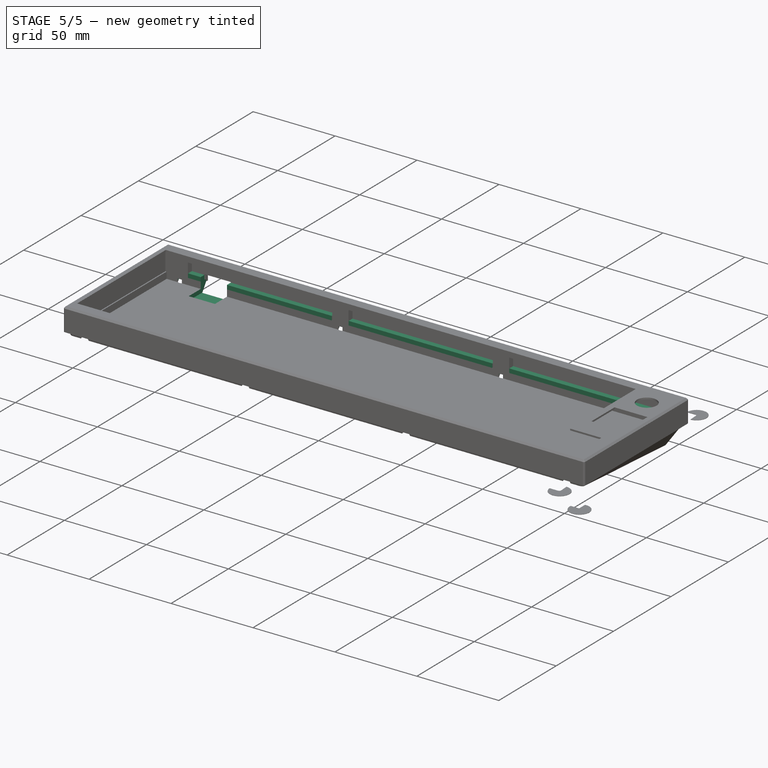
[diagram: stage 5 of 5 — iso view after this stage's code; geometry added in this stage tinted green]
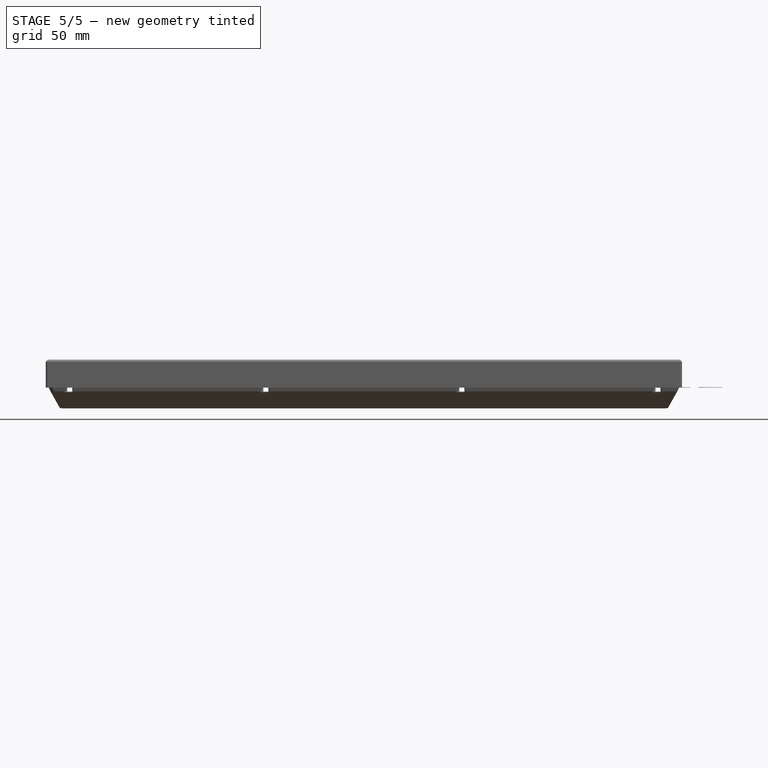
[diagram: stage 5 of 5 — front view after this stage's code; geometry added in this stage tinted green]
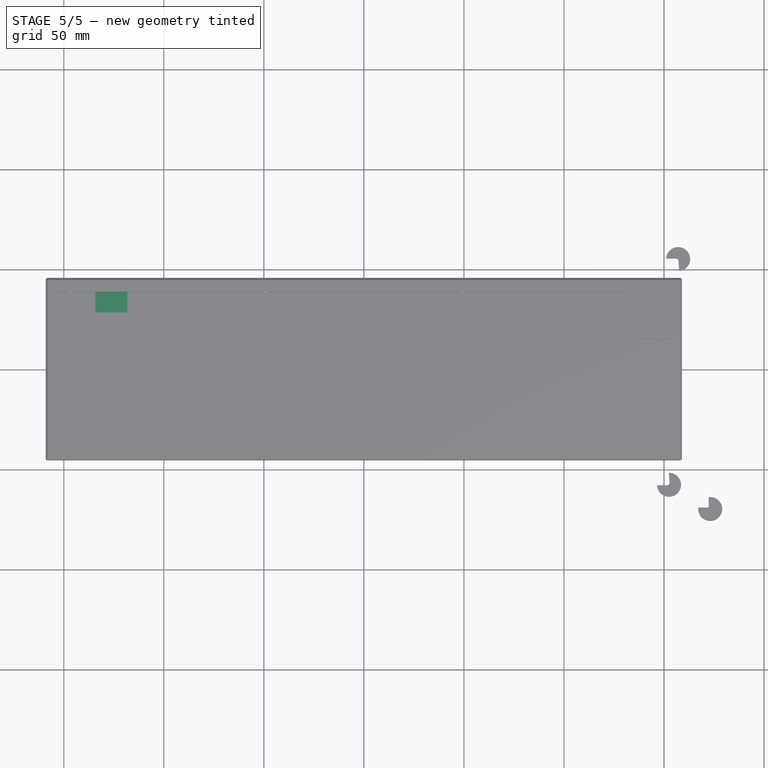
[diagram: stage 5 of 5 — top view after this stage's code; geometry added in this stage tinted green]
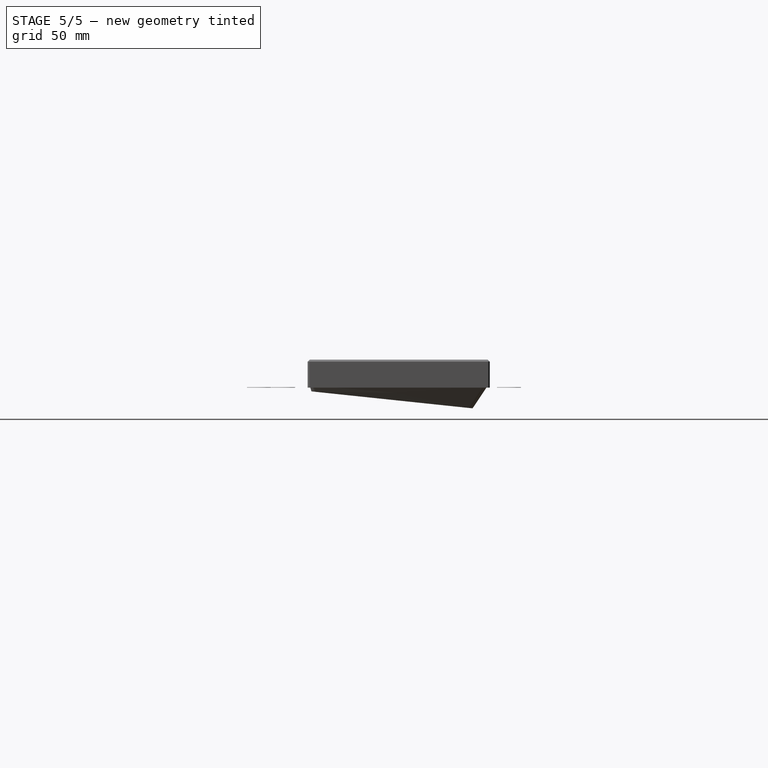
[diagram: stage 5 of 5 — right view after this stage's code; geometry added in this stage tinted green]
FEATURE [PartDesign::Pocket] Pocket011  label="screw_head"
  BaseFeature = -> Pocket010
  Direction = (0,0,-1)
  Length = 15
  Length2 = 5
  Profile = -> Sketch009
  ReferenceAxis = -> Sketch009 [N_Axis]
  Suppressed = false
  Type = 0
FEATURE [PartDesign::Pad] Pad003  label="gasket_support"
  BaseFeature = -> Pocket011
  Direction = (0,0,1)
  Length = 2.5
  Length2 = 10
  Profile = -> Sketch022
  ReferenceAxis = -> Sketch022 [N_Axis]
  Suppressed = false
  Type = 0
FEATURE [Sketcher::SketchObject] Sketch076
  ArcFitTolerance = 0
  AttachmentOffset = pos=(0,0,2) rot=(0,0,1;0rad)
  AttachmentSupport = -> [XY_Plane001]
  FullyConstrained = true
  MakeInternals = false
  MapMode = 5
  Placement = pos=(0,0,2) rot=(0,0,1;0rad)
  sketch-geometry (12):
    g0: LineSegment StartX=-156.25 StartY=44.75 StartZ=0 EndX=156.25 EndY=44.75 EndZ=0
    g1: LineSegment StartX=158.25 StartY=42.75 StartZ=0 EndX=158.25 EndY=-42.75 EndZ=0
    g2: LineSegment StartX=156.25 StartY=-44.75 StartZ=0 EndX=-156.25 EndY=-44.75 EndZ=0
    g3: LineSegment StartX=-158.25 StartY=-42.75 StartZ=0 EndX=-158.25 EndY=42.75 EndZ=0
    g4: ArcOfCircle CenterX=-156.25 CenterY=42.75 CenterZ=0 NormalX=0 NormalY=0 NormalZ=1 AngleXU=0 Radius=2 StartAngle=1.5708 EndAngle=3.14159
    g5: GeomPoint [constr] X=-158.25 Y=44.75 Z=0
    g6: ArcOfCircle CenterX=156.25 CenterY=42.75 CenterZ=0 NormalX=0 NormalY=0 NormalZ=1 AngleXU=0 Radius=2 StartAngle=0 EndAngle=1.5708
    g7: GeomPoint [constr] X=158.25 Y=44.75 Z=0
    g8: ArcOfCircle CenterX=156.25 CenterY=-42.75 CenterZ=0 NormalX=0 NormalY=0 NormalZ=1 AngleXU=0 Radius=2 StartAngle=4.71239 EndAngle=6.28319
    g9: GeomPoint [constr] X=158.25 Y=-44.75 Z=0
    g10: ArcOfCircle CenterX=-156.25 CenterY=-42.75 CenterZ=0 NormalX=0 NormalY=0 NormalZ=1 AngleXU=0 Radius=2 StartAngle=3.14159 EndAngle=4.71239
    g11: GeomPoint [constr] X=-158.25 Y=-44.75 Z=0
  constraints (26):
    c: Horizontal(g2)
    c: Vertical(g1)
    c: DistanceX(g5,g7) = 316.5
    c: DistanceY(g11,g5) = 89.5
    c: PointOnObject(g5,g3)
    c: PointOnObject(g5,g0)
    c: Tangent(g3,g4) = 1.5708
    c: Tangent(g0,g4) = 1.5708
    c: PointOnObject(g7,g0)
    c: PointOnObject(g7,g1)
    c: Tangent(g0,g6) = 1.5708
    c: Tangent(g1,g6) = 1.5708
    c: PointOnObject(g9,g1)
    c: PointOnObject(g9,g2)
    c: Tangent(g1,g8) = 1.5708
    c: Tangent(g2,g8) = 1.5708
    c: PointOnObject(g11,g2)
    c: PointOnObject(g11,g3)
    c: Tangent(g2,g10) = 1.5708
    c: Tangent(g3,g10) = 1.5708
    c: Radius(g4) = 2
    c: Radius(g10) = 2
    c: Radius(g8) = 2
    c: Radius(g6) = 2
    c: Symmetric(g0,g2,g-1)
    c: Symmetric(g0,g0,g-2)
FEATURE [Sketcher::SketchObject] Sketch077
  ArcFitTolerance = 0
  AttachmentOffset = pos=(0,0,15) rot=(0,0,1;0rad)
  AttachmentSupport = -> [XY_Plane001]
  FullyConstrained = true
  MakeInternals = false
  MapMode = 5
  Placement = pos=(0,0,15) rot=(0,0,1;0rad)
  expr: Constraints[62] = <<Spreadsheet>>.key_plate_margin
  expr: Constraints[63] = <<Spreadsheet>>.key_plate_margin
  expr: Constraints[64] = <<Spreadsheet>>.key_plate_margin
  expr: Constraints[65] = <<Spreadsheet>>.key_plate_margin
  expr: Constraints[66] = <<Spreadsheet>>.key_plate_margin
  expr: Constraints[67] = <<Spreadsheet>>.key_plate_margin
  expr: Constraints[68] = <<Spreadsheet>>.key_plate_margin
  expr: Constraints[69] = <<Spreadsheet>>.key_plate_margin
  expr: Constraints[70] = <<Spreadsheet>>.key_plate_margin
  expr: Constraints[71] = <<Spreadsheet>>.key_plate_margin
  sketch-geometry (25):
    g0: LineSegment StartX=-155.281 StartY=38.6 StartZ=0 EndX=131.469 EndY=38.6 EndZ=0
    g1: LineSegment StartX=150.519 StartY=-38.6 StartZ=0 EndX=-155.281 EndY=-38.6 EndZ=0
    g2: LineSegment StartX=-155.281 StartY=-38.6 StartZ=0 EndX=-155.281 EndY=38.6 EndZ=0
    g3: LineSegment [constr] StartX=130.969 StartY=38.1 StartZ=0 EndX=-154.781 EndY=38.1 EndZ=0
    g4: LineSegment [constr] StartX=-154.781 StartY=38.1 StartZ=0 EndX=-154.781 EndY=-38.1 EndZ=0
    g5: LineSegment [constr] StartX=-154.781 StartY=-38.1 StartZ=0 EndX=150.019 EndY=-38.1 EndZ=0
    g6: LineSegment [constr] StartX=150.019 StartY=-38.1 StartZ=0 EndX=150.019 EndY=-19.05 EndZ=0
    g7: LineSegment [constr] StartX=150.019 StartY=-19.05 StartZ=0 EndX=130.969 EndY=-19.05 EndZ=0
    g8: LineSegment [constr] StartX=130.969 StartY=-19.05 StartZ=0 EndX=130.969 EndY=38.1 EndZ=0
    g9: LineSegment [constr] StartX=135.731 StartY=14.2875 StartZ=0 EndX=154.781 EndY=14.2875 EndZ=0
    g10: LineSegment [constr] StartX=154.781 StartY=14.2875 StartZ=0 EndX=154.781 EndY=-4.7625 EndZ=0
    g11: LineSegment [constr] StartX=154.781 StartY=-4.7625 StartZ=0 EndX=135.731 EndY=-4.7625 EndZ=0
    g12: LineSegment [constr] StartX=135.731 StartY=-4.7625 StartZ=0 EndX=135.731 EndY=14.2875 EndZ=0
    g13: LineSegment [constr] StartX=135.731 StartY=19.05 StartZ=0 EndX=154.781 EndY=19.05 EndZ=0
    g14: LineSegment [constr] StartX=154.781 StartY=19.05 StartZ=0 EndX=154.781 EndY=38.1 EndZ=0
    g15: LineSegment [constr] StartX=154.781 StartY=38.1 StartZ=0 EndX=135.731 EndY=38.1 EndZ=0
    g16: LineSegment [constr] StartX=135.731 StartY=38.1 StartZ=0 EndX=135.731 EndY=19.05 EndZ=0
    g17: LineSegment StartX=131.469 StartY=38.6 StartZ=0 EndX=131.469 EndY=-18.55 EndZ=0
    g18: LineSegment StartX=131.469 StartY=-18.55 StartZ=0 EndX=150.519 EndY=-18.55 EndZ=0
    g19: LineSegment StartX=150.519 StartY=-18.55 StartZ=0 EndX=150.519 EndY=-38.6 EndZ=0
    g20: LineSegment StartX=155.281 StartY=14.7875 StartZ=0 EndX=135.231 EndY=14.7875 EndZ=0
    g21: LineSegment StartX=135.231 StartY=14.7875 StartZ=0 EndX=135.231 EndY=-5.2625 EndZ=0
    g22: LineSegment StartX=135.231 StartY=-5.2625 StartZ=0 EndX=155.281 EndY=-5.2625 EndZ=0
    g23: LineSegment StartX=155.281 StartY=-5.2625 StartZ=0 EndX=155.281 EndY=14.7875 EndZ=0
    g24: Circle CenterX=145.256 CenterY=28.575 CenterZ=0 NormalX=0 NormalY=0 NormalZ=1 AngleXU=0 Radius=6
  constraints (75):
    c: Coincident(g1,g2)
    c: Coincident(g2,g0)
    c: Horizontal(g1)
    c: Vertical(g2)
    c: Horizontal(g3)
    c: Coincident(g3,g4)
    c: Vertical(g4)
    c: Coincident(g4,g5)
    c: Horizontal(g5)
    c: Coincident(g5,g6)
    c: Vertical(g6)
    c: Coincident(g6,g7)
    c: Horizontal(g7)
    c: Coincident(g7,g8)
    c: Coincident(g8,g3)
    c: Vertical(g8)
    c: DistanceX(g3,g-1) = 154.781
    c: DistanceY(g-1,g3) = 38.1
    c: DistanceY(g4,g-1) = 38.1
    c: DistanceX(g-1,g5) = 150.019
    c: DistanceX(g7,g6) = 19.05
    c: DistanceY(g6,g6) = 19.05
    c: Coincident(g9,g10)
    c: Coincident(g10,g11)
    c: Coincident(g11,g12)
    c: Coincident(g12,g9)
    c: Horizontal(g9)
    c: Horizontal(g11)
    c: Vertical(g10)
    c: Vertical(g12)
    c: Coincident(g13,g14)
    c: Coincident(g14,g15)
    c: Coincident(g15,g16)
    c: Coincident(g16,g13)
    c: Horizontal(g13)
    c: Horizontal(g15)
    c: Vertical(g14)
    c: Vertical(g16)
    c: DistanceY(g14,g14) = 19.05
    c: DistanceY(g10,g10) = 19.05
    c: DistanceX(g15,g15) = 19.05
    c: DistanceX(g9,g9) = 19.05
    c: DistanceX(g3,g15) = 4.7625
    c: PointOnObject(g15,g3)
    c: PointOnObject(g9,g16)
    c: DistanceY(g9,g13) = 4.7625
    c: Horizontal(g0)
    c: Coincident(g17,g0)
    c: Vertical(g17)
    c: Coincident(g18,g17)
    c: Horizontal(g18)
    c: Coincident(g19,g18)
    c: Coincident(g19,g1)
    c: Vertical(g19)
    c: Coincident(g20,g21)
    c: Coincident(g21,g22)
    c: Coincident(g22,g23)
    c: Coincident(g23,g20)
    c: Horizontal(g20)
    c: Horizontal(g22)
    c: Vertical(g21)
    c: Vertical(g23)
    c: DistanceY(g3,g0) = 0.5
    c: DistanceX(g0,g3) = 0.5
    c: DistanceY(g1,g4) = 0.5
    c: DistanceX(g3,g0) = 0.5
    c: DistanceY(g7,g17) = 0.5
    c: DistanceX(g6,g18) = 0.5
    c: DistanceX(g10,g22) = 0.5
    c: DistanceY(g22,g10) = 0.5
    c: DistanceY(g9,g20) = 0.5
    c: DistanceX(g20,g9) = 0.5
    c: DistanceX(g13,g24) = 9.525
    c: DistanceY(g13,g24) = 9.525
    c: Diameter(g24) = 12
FEATURE [Sketcher::SketchObject] Sketch078
  ArcFitTolerance = 0
  AttachmentOffset = pos=(0,0,1) rot=(0,0,1;0rad)
  AttachmentSupport = -> [XY_Plane001]
  FullyConstrained = false
  MakeInternals = false
  MapMode = 5
  Placement = pos=(0,0,1) rot=(0,0,1;0rad)
  sketch-geometry (5):
    g0: LineSegment StartX=-134.206 StartY=48.5 StartZ=0 EndX=-118.206 EndY=48.5 EndZ=0
    g1: LineSegment StartX=-118.206 StartY=48.5 StartZ=0 EndX=-118.206 EndY=36.5 EndZ=0
    g2: LineSegment StartX=-118.206 StartY=36.5 StartZ=0 EndX=-134.206 EndY=36.5 EndZ=0
    g3: LineSegment StartX=-134.206 StartY=36.5 StartZ=0 EndX=-134.206 EndY=48.5 EndZ=0
    g4: LineSegment [constr] StartX=-126.206 StartY=63.51 StartZ=0 EndX=-126.206 EndY=4.6133 EndZ=0
  constraints (13):
    c: Coincident(g0,g1)
    c: Coincident(g1,g2)
    c: Coincident(g2,g3)
    c: Coincident(g3,g0)
    c: Horizontal(g0)
    c: Horizontal(g2)
    c: Vertical(g1)
    c: Vertical(g3)
    c: DistanceX(g4,g-1) = 126.206
    c: DistanceY(g-1,g0) = 48.5
    c: DistanceX(g0,g0) = 16
    c: Symmetric(g0,g0,g4)
    c: DistanceY(g1,g1) = 12
FEATURE [Sketcher::SketchObject] Sketch079
  ArcFitTolerance = 0
  AttachmentOffset = pos=(0,0,1) rot=(0,0,1;0rad)
  AttachmentSupport = -> [XY_Plane]
  FullyConstrained = false
  MakeInternals = false
  MapMode = 5
  Placement = pos=(0,0,1) rot=(0,0,1;0rad)
  sketch-geometry (5):
    g0: LineSegment StartX=-134.206 StartY=48.5 StartZ=0 EndX=-118.206 EndY=48.5 EndZ=0
    g1: LineSegment StartX=-118.206 StartY=48.5 StartZ=0 EndX=-118.206 EndY=28.5 EndZ=0
    g2: LineSegment StartX=-118.206 StartY=28.5 StartZ=0 EndX=-134.206 EndY=28.5 EndZ=0
    g3: LineSegment StartX=-134.206 StartY=28.5 StartZ=0 EndX=-134.206 EndY=48.5 EndZ=0
    g4: LineSegment [constr] StartX=-126.206 StartY=63.51 StartZ=0 EndX=-126.206 EndY=4.6133 EndZ=0
  constraints (13):
    c: Coincident(g0,g1)
    c: Coincident(g1,g2)
    c: Coincident(g2,g3)
    c: Coincident(g3,g0)
    c: Horizontal(g0)
    c: Horizontal(g2)
    c: Vertical(g1)
    c: Vertical(g3)
    c: DistanceX(g4,g-1) = 126.206
    c: DistanceY(g-1,g0) = 48.5
    c: DistanceX(g0,g0) = 16
    c: Symmetric(g0,g0,g4)
    c: DistanceY(g1,g1) = 20
FEATURE [PartDesign::Pocket] Pocket053
  BaseFeature = -> Pad003
  Direction = (0,0,-1)
  Length = 11
  Length2 = 5
  Midplane = true
  Profile = -> Sketch079
  ReferenceAxis = -> Sketch079 [N_Axis]
  Suppressed = false
  Type = 0
FEATURE [PartDesign::Fillet] Fillet001
  Base = -> Pocket053 [Edge228,Edge185,Edge89,Edge64,Edge186]
  BaseFeature = -> Pocket053
  Radius = 0.5
  SupportTransform = false
  Suppressed = false
  UseAllEdges = false
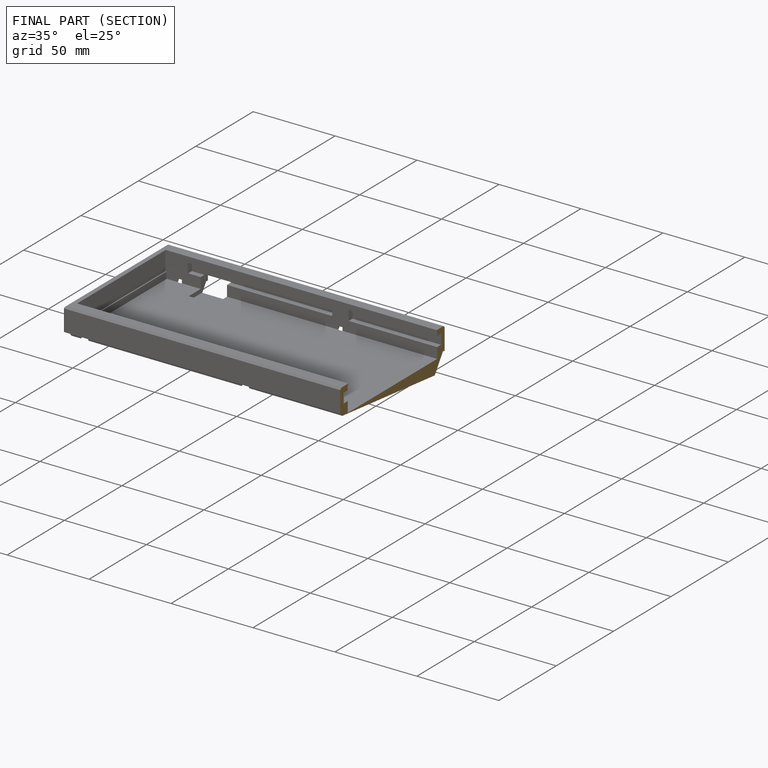
[diagram: finished part — half-section view (interior)]
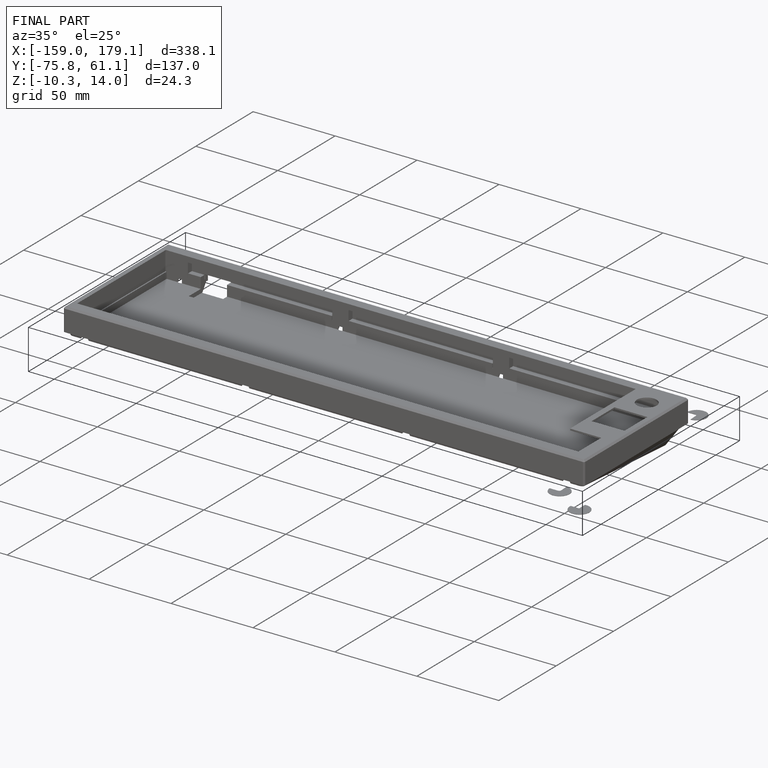
[diagram: finished part — iso view with bounding-box wireframe]
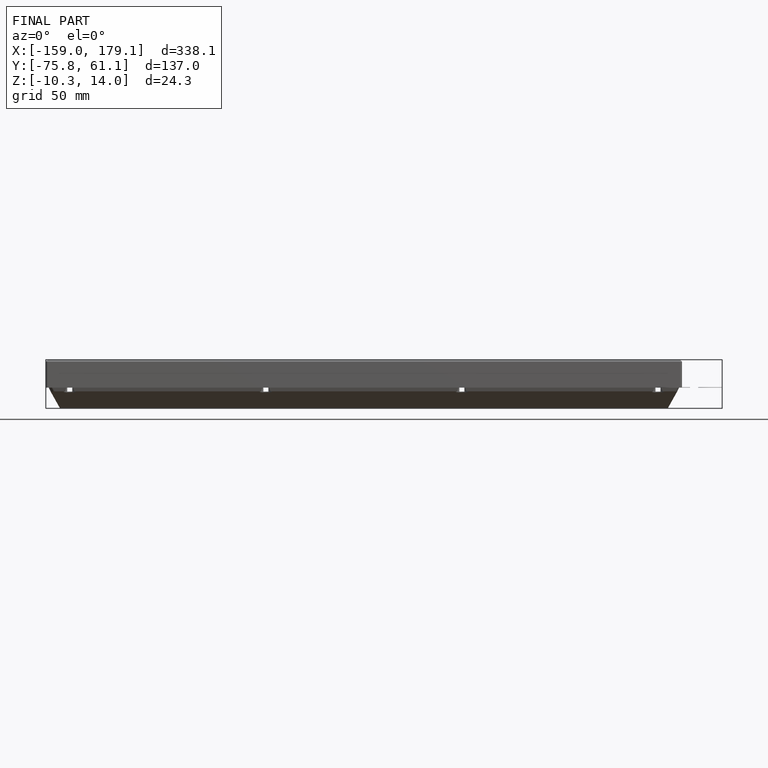
[diagram: finished part — front view with bounding-box wireframe]
